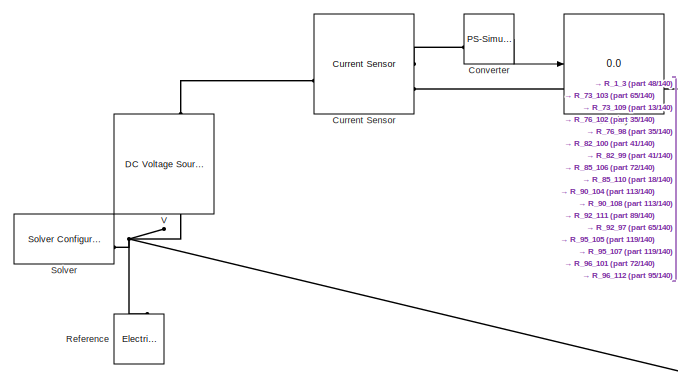
[diagram: root canvas - part 1/140, top left region]
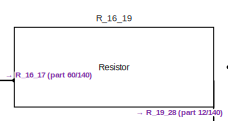
[diagram: root canvas - part 2/140, top right region]
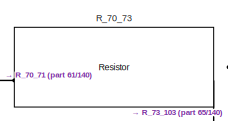
[diagram: root canvas - part 3/140, top right region]
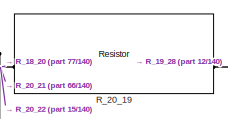
[diagram: root canvas - part 4/140, top right region]
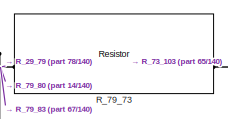
[diagram: root canvas - part 5/140, top right region]
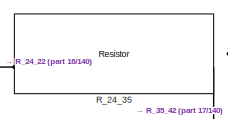
[diagram: root canvas - part 6/140, top right region]
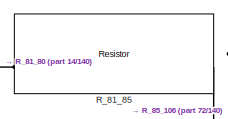
[diagram: root canvas - part 7/140, top right region]
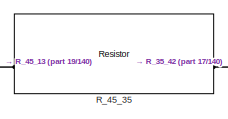
[diagram: root canvas - part 8/140, top right region]
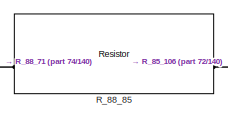
[diagram: root canvas - part 9/140, top right region]
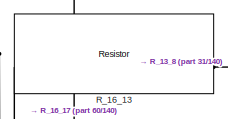
[diagram: root canvas - part 10/140, top center region]
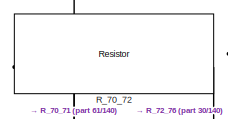
[diagram: root canvas - part 11/140, top right region]
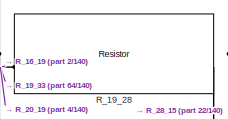
[diagram: root canvas - part 12/140, top right region]
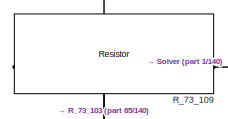
[diagram: root canvas - part 13/140, top right region]
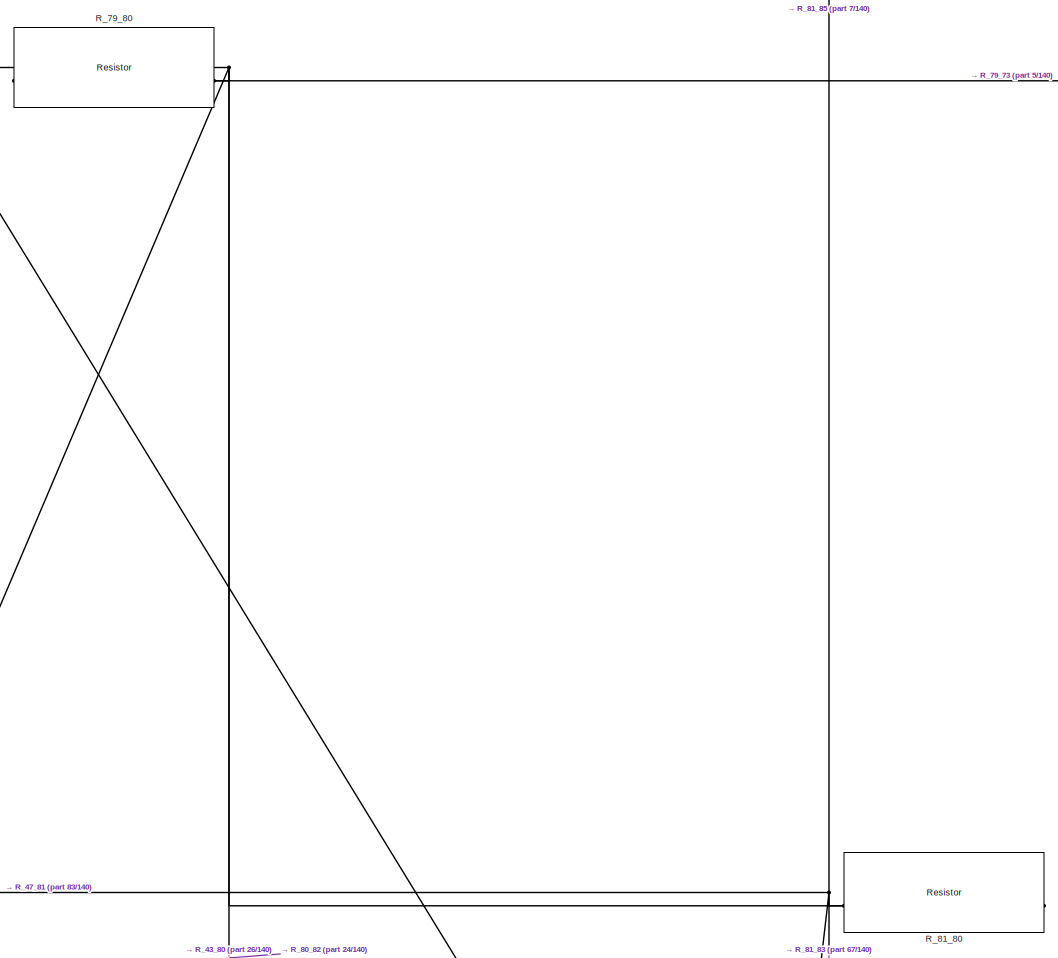
[diagram: root canvas - part 14/140, top right region]
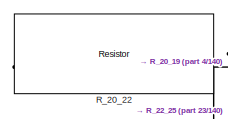
[diagram: root canvas - part 15/140, top center region]
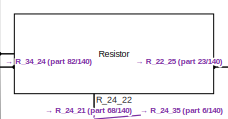
[diagram: root canvas - part 16/140, top center region]
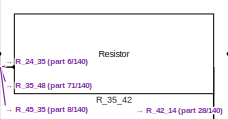
[diagram: root canvas - part 17/140, top right region]
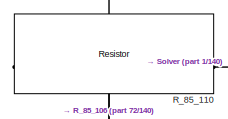
[diagram: root canvas - part 18/140, top right region]
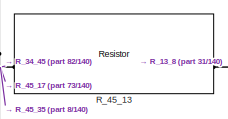
[diagram: root canvas - part 19/140, top center region]
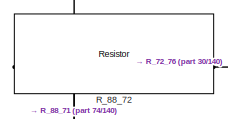
[diagram: root canvas - part 20/140, top right region]
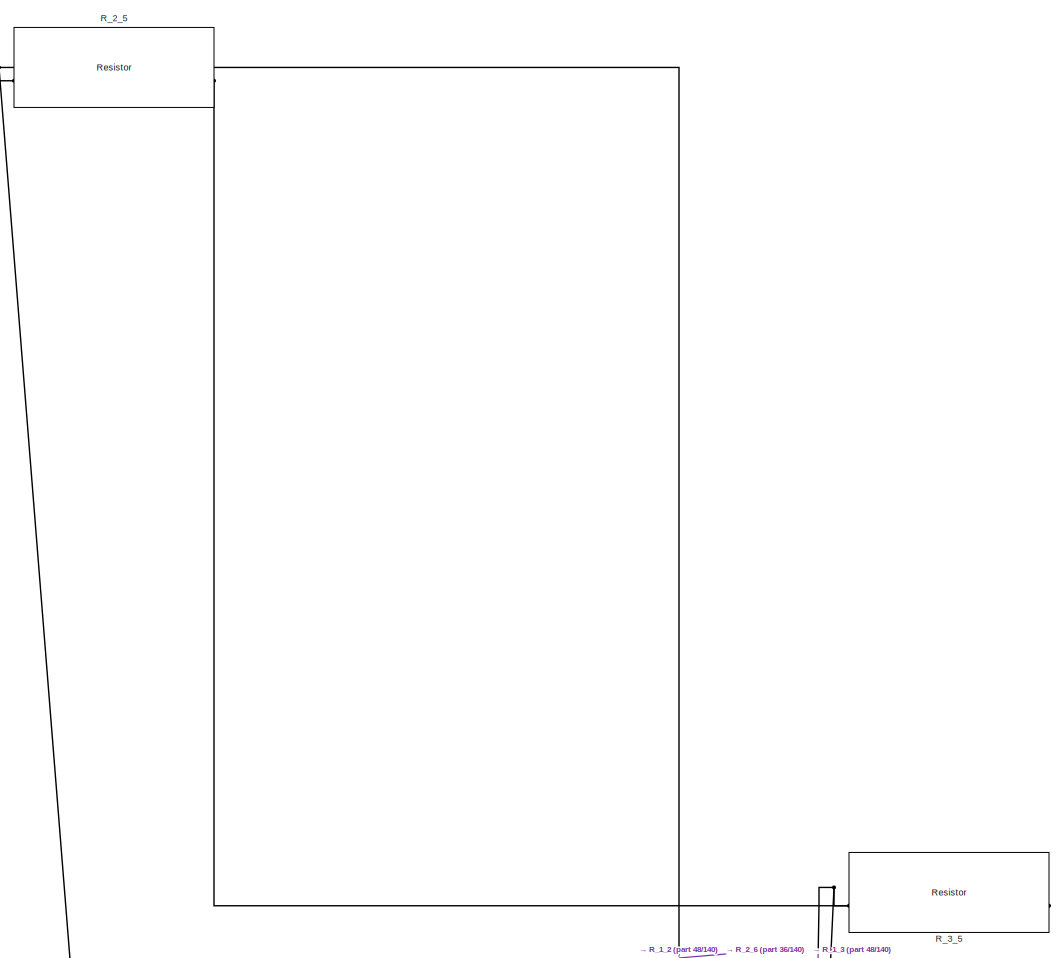
[diagram: root canvas - part 21/140, top center region]
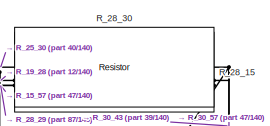
[diagram: root canvas - part 22/140, top right region]
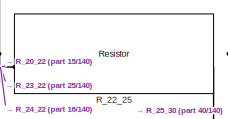
[diagram: root canvas - part 23/140, top right region]
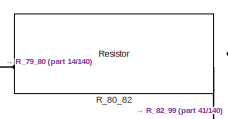
[diagram: root canvas - part 24/140, top right region]
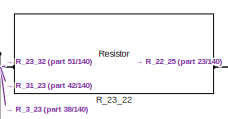
[diagram: root canvas - part 25/140, top center region]
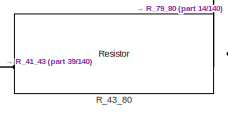
[diagram: root canvas - part 26/140, top right region]
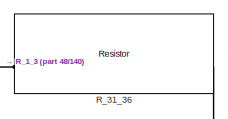
[diagram: root canvas - part 27/140, top center region]
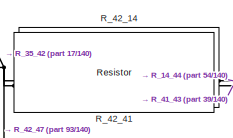
[diagram: root canvas - part 28/140, top right region]
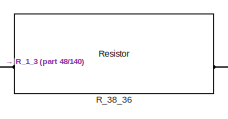
[diagram: root canvas - part 29/140, top center region]
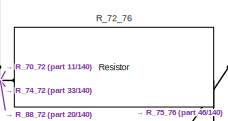
[diagram: root canvas - part 30/140, top right region]
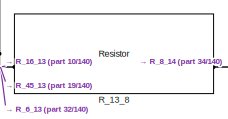
[diagram: root canvas - part 31/140, top right region]
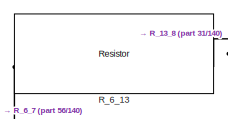
[diagram: root canvas - part 32/140, top center region]
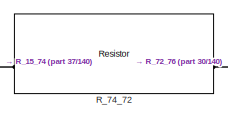
[diagram: root canvas - part 33/140, top right region]
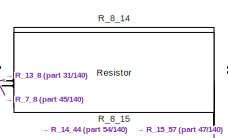
[diagram: root canvas - part 34/140, top right region]
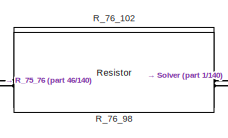
[diagram: root canvas - part 35/140, top right region]
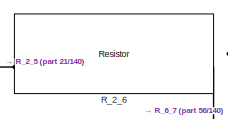
[diagram: root canvas - part 36/140, top center region]
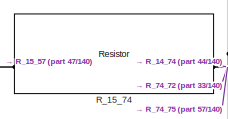
[diagram: root canvas - part 37/140, top right region]
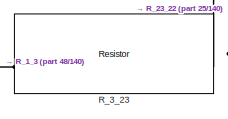
[diagram: root canvas - part 38/140, top center region]
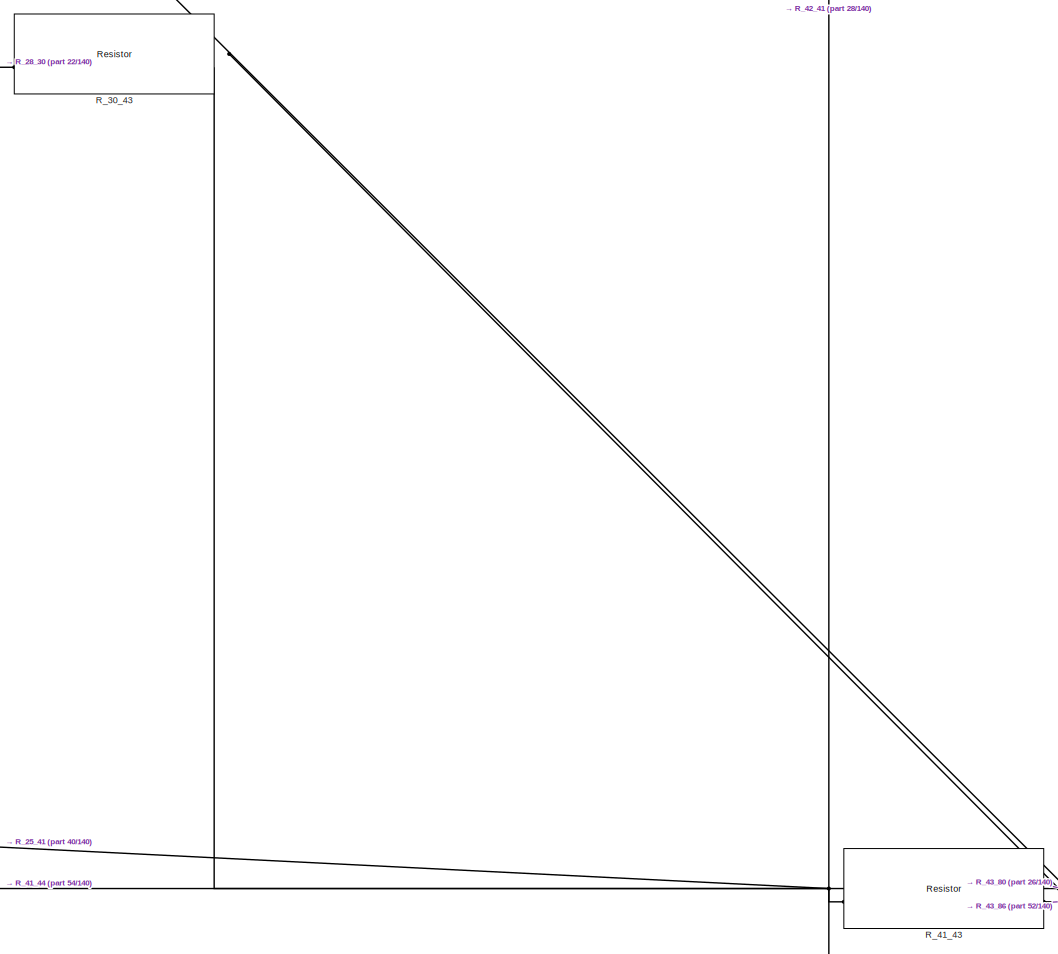
[diagram: root canvas - part 39/140, top right region]
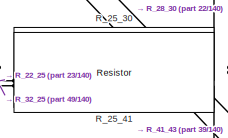
[diagram: root canvas - part 40/140, top right region]
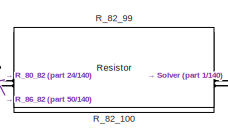
[diagram: root canvas - part 41/140, top right region]
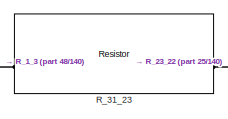
[diagram: root canvas - part 42/140, top center region]
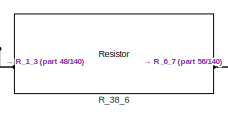
[diagram: root canvas - part 43/140, top center region]
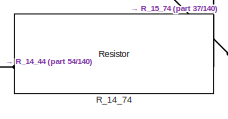
[diagram: root canvas - part 44/140, top right region]
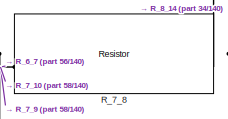
[diagram: root canvas - part 45/140, top center region]
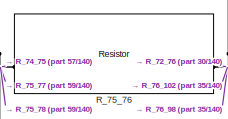
[diagram: root canvas - part 46/140, top right region]
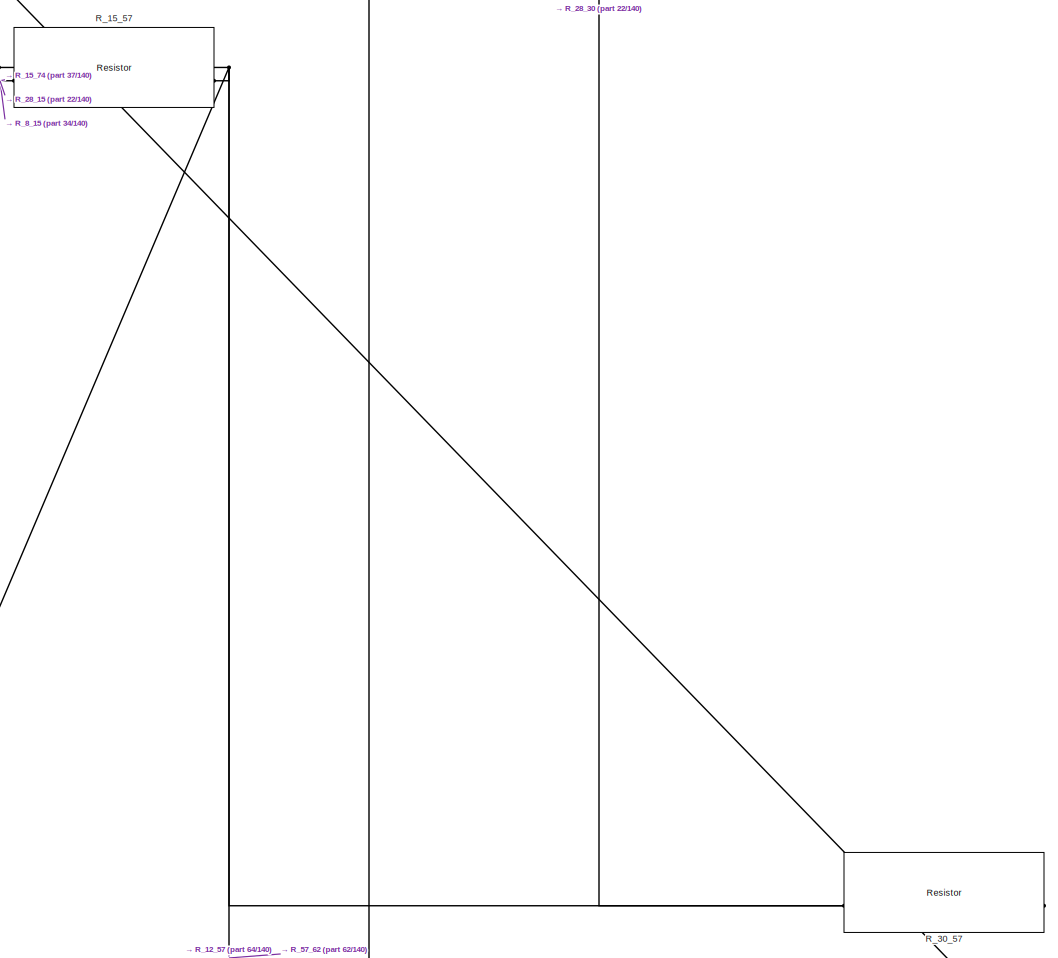
[diagram: root canvas - part 47/140, middle right region]
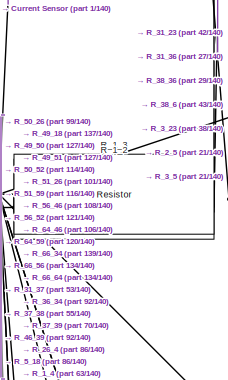
[diagram: root canvas - part 48/140, central region]
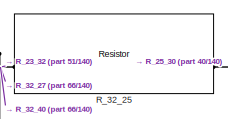
[diagram: root canvas - part 49/140, middle right region]
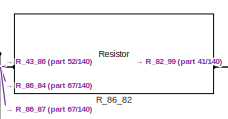
[diagram: root canvas - part 50/140, middle right region]
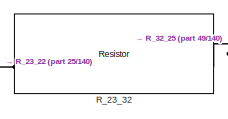
[diagram: root canvas - part 51/140, central region]
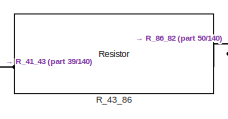
[diagram: root canvas - part 52/140, middle right region]
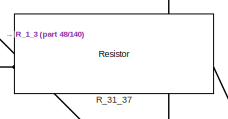
[diagram: root canvas - part 53/140, central region]
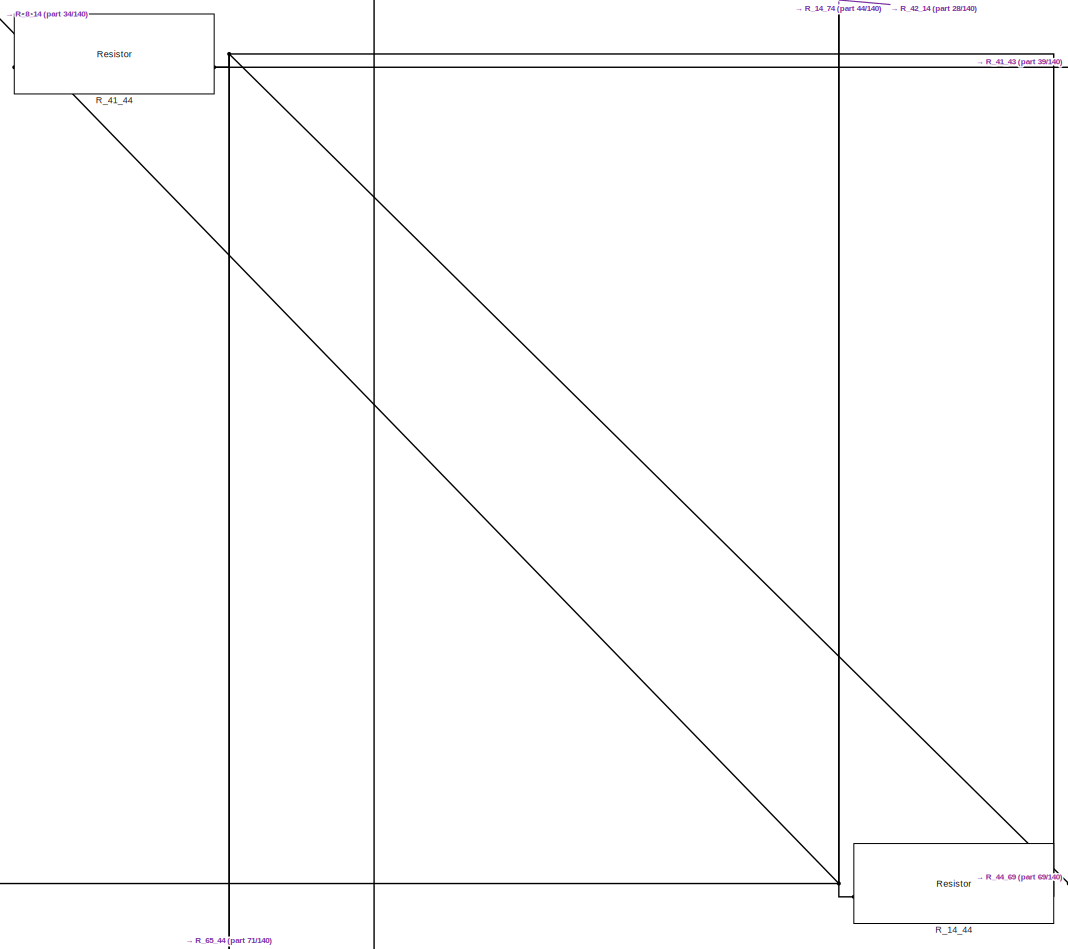
[diagram: root canvas - part 54/140, middle right region]
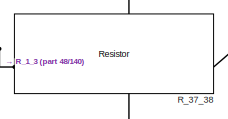
[diagram: root canvas - part 55/140, central region]
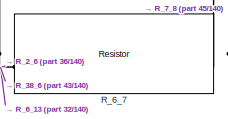
[diagram: root canvas - part 56/140, central region]
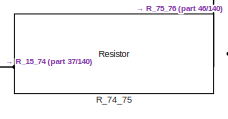
[diagram: root canvas - part 57/140, middle right region]
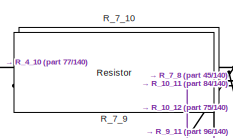
[diagram: root canvas - part 58/140, central region]
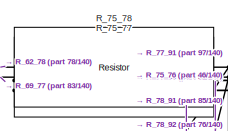
[diagram: root canvas - part 59/140, middle right region]
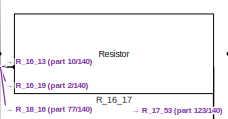
[diagram: root canvas - part 60/140, central region]
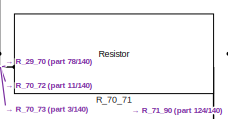
[diagram: root canvas - part 61/140, middle right region]
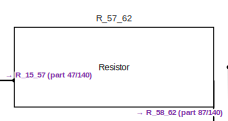
[diagram: root canvas - part 62/140, middle right region]
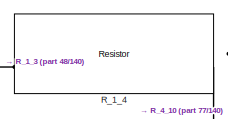
[diagram: root canvas - part 63/140, central region]
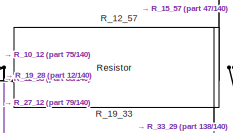
[diagram: root canvas - part 64/140, middle right region]
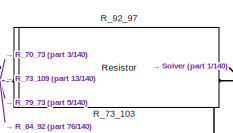
[diagram: root canvas - part 65/140, middle right region]
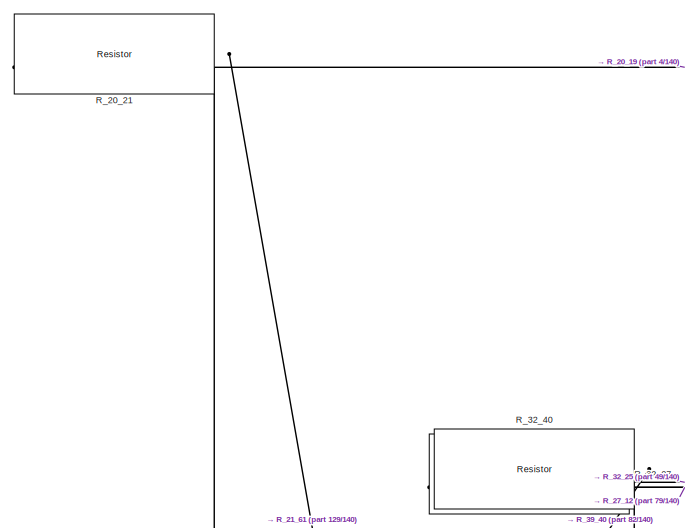
[diagram: root canvas - part 66/140, central region]
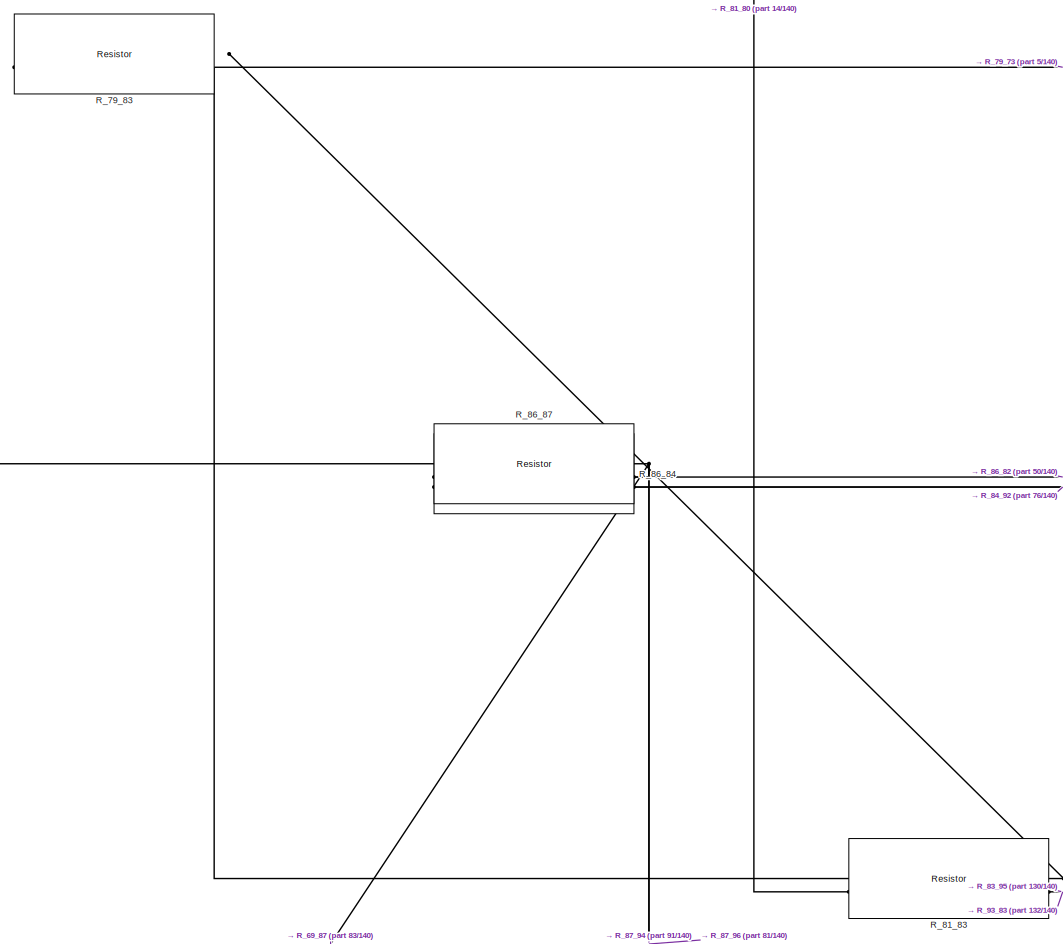
[diagram: root canvas - part 67/140, middle right region]
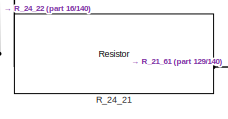
[diagram: root canvas - part 68/140, central region]
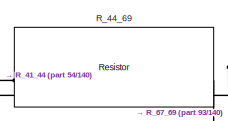
[diagram: root canvas - part 69/140, middle right region]
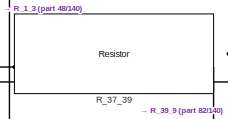
[diagram: root canvas - part 70/140, central region]
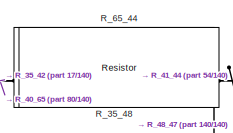
[diagram: root canvas - part 71/140, middle right region]
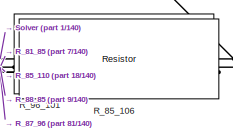
[diagram: root canvas - part 72/140, middle right region]
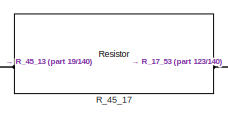
[diagram: root canvas - part 73/140, central region]
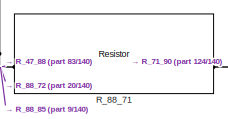
[diagram: root canvas - part 74/140, middle right region]
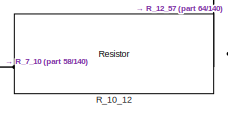
[diagram: root canvas - part 75/140, middle right region]
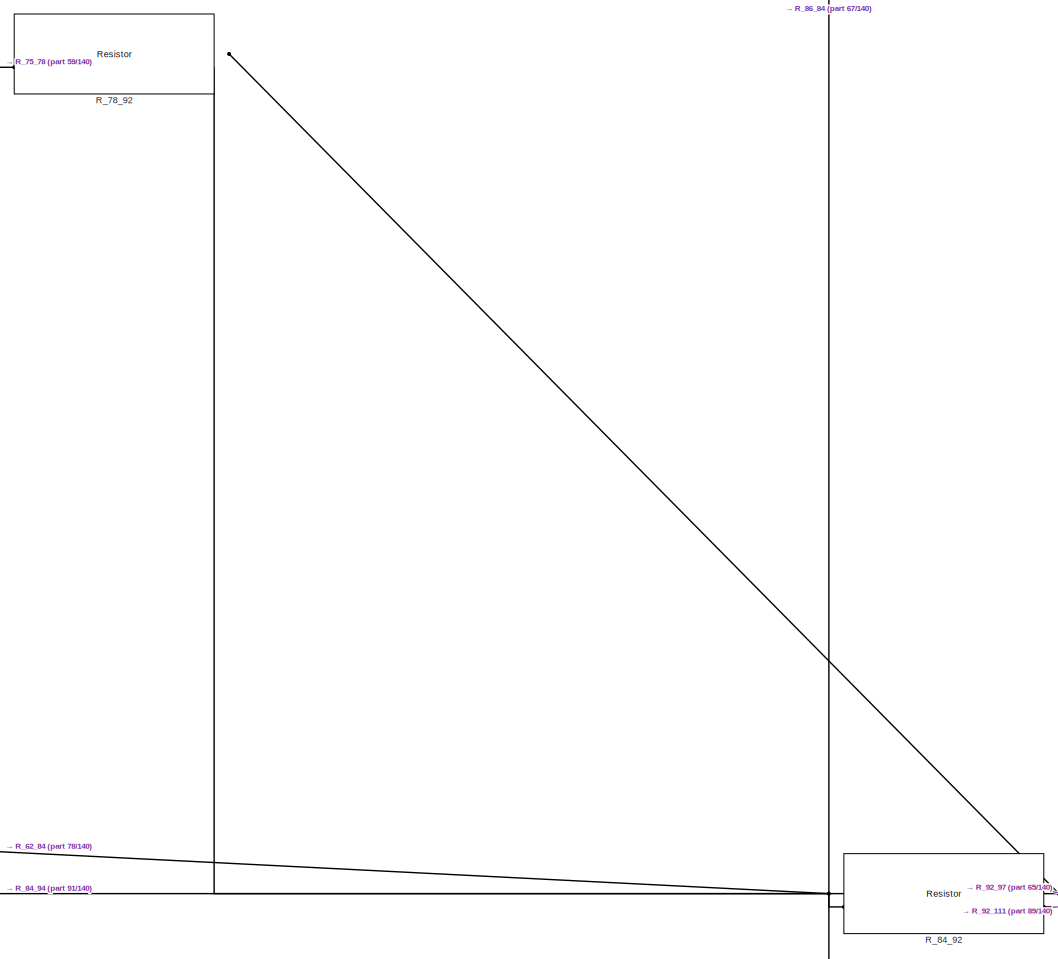
[diagram: root canvas - part 76/140, middle right region]
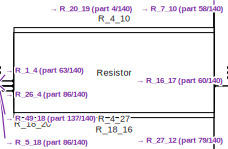
[diagram: root canvas - part 77/140, central region]
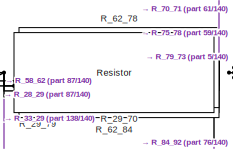
[diagram: root canvas - part 78/140, middle right region]
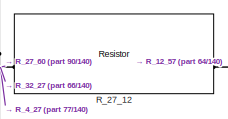
[diagram: root canvas - part 79/140, middle right region]
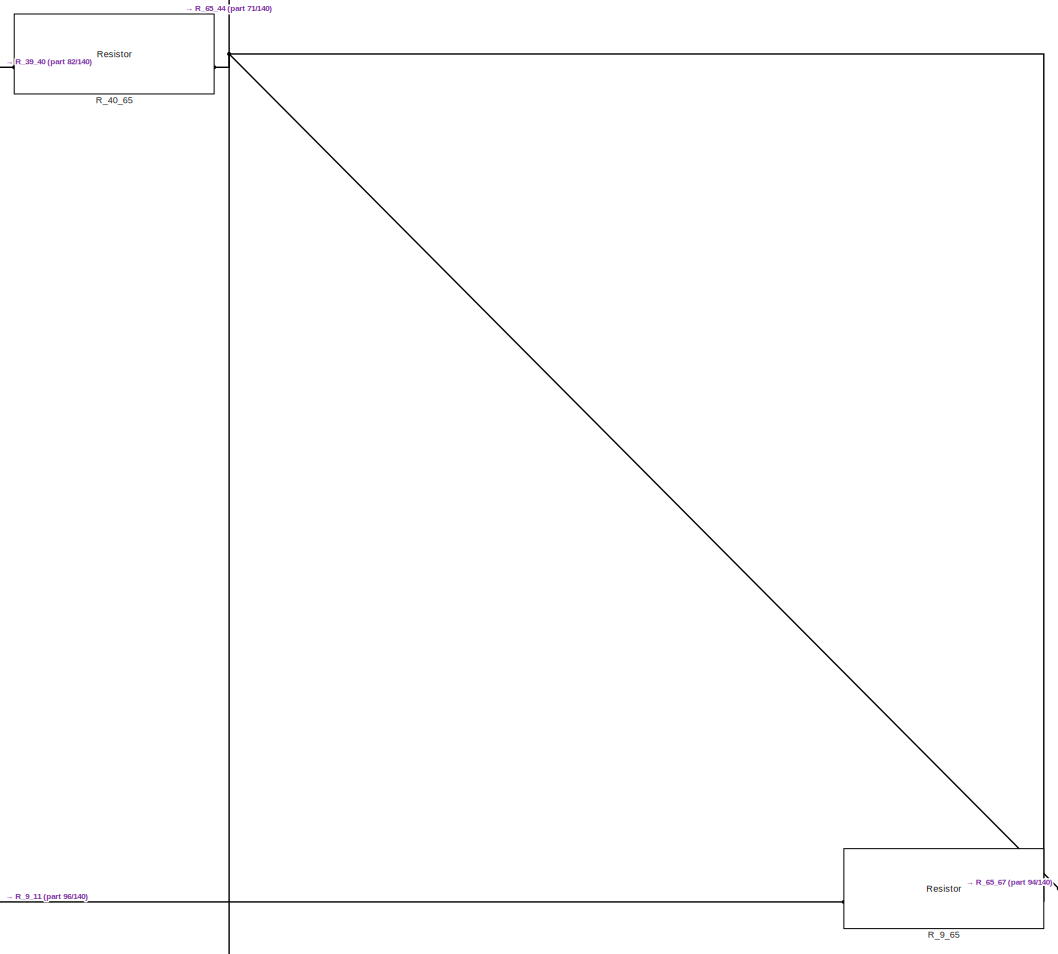
[diagram: root canvas - part 80/140, middle right region]
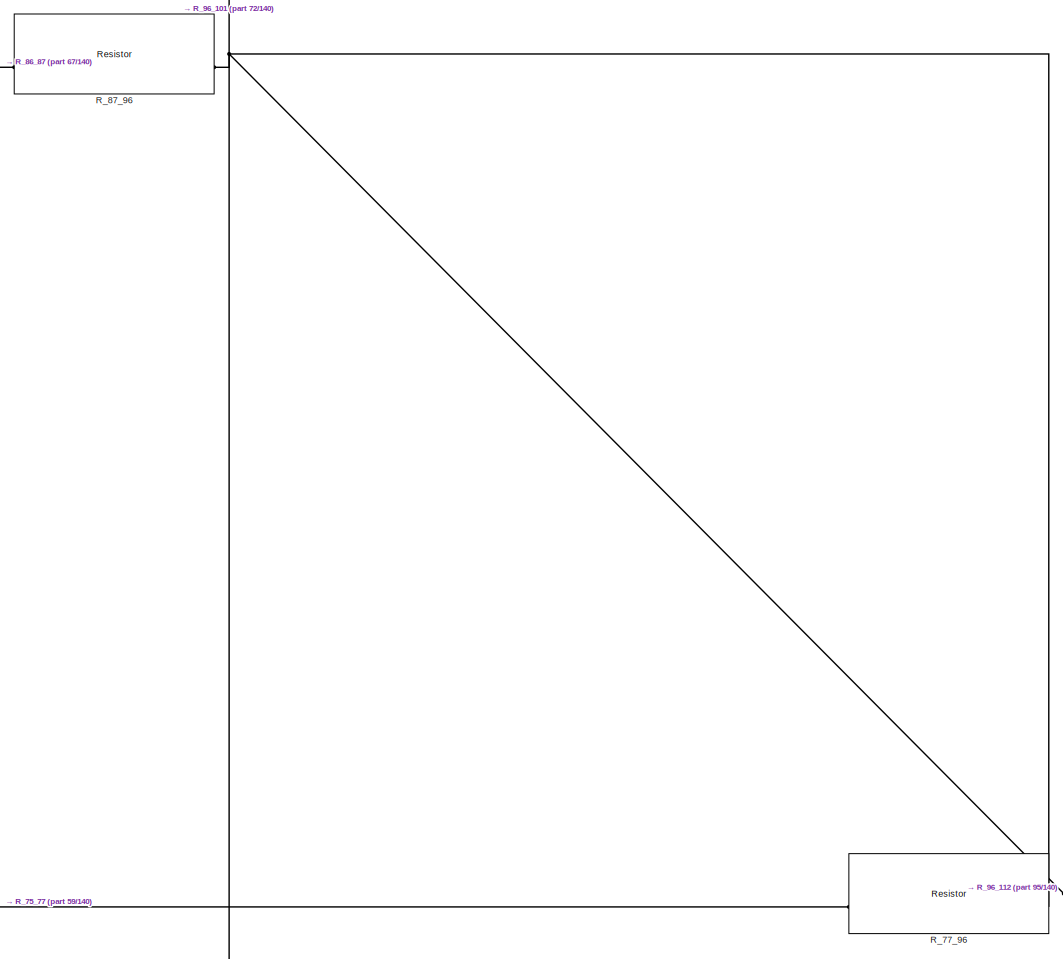
[diagram: root canvas - part 81/140, middle right region]
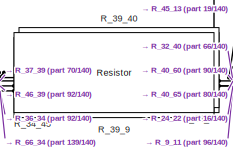
[diagram: root canvas - part 82/140, central region]
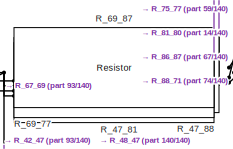
[diagram: root canvas - part 83/140, middle right region]
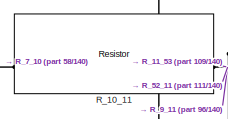
[diagram: root canvas - part 84/140, central region]
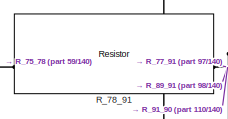
[diagram: root canvas - part 85/140, middle right region]
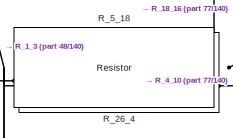
[diagram: root canvas - part 86/140, central region]
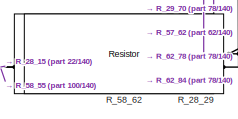
[diagram: root canvas - part 87/140, middle right region]
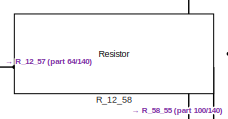
[diagram: root canvas - part 88/140, middle right region]
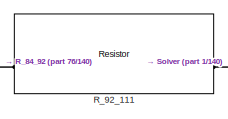
[diagram: root canvas - part 89/140, middle right region]
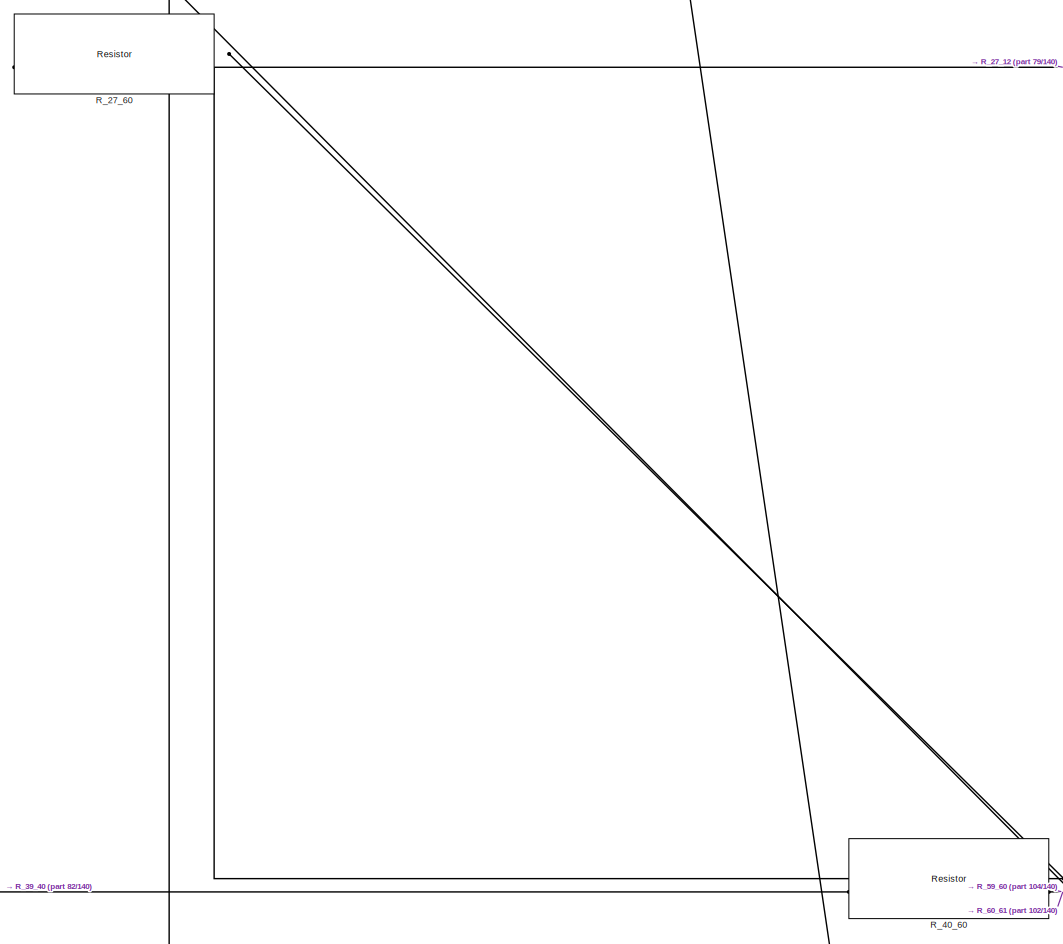
[diagram: root canvas - part 90/140, central region]
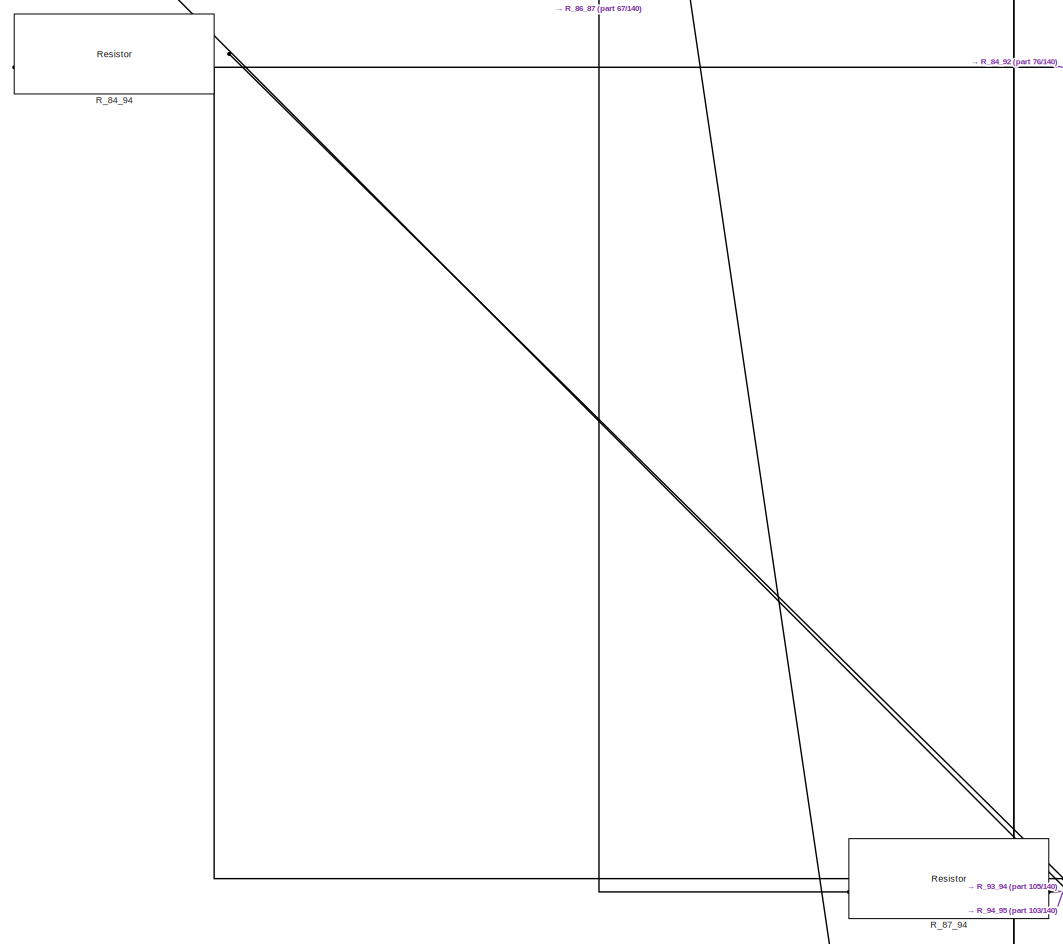
[diagram: root canvas - part 91/140, middle right region]
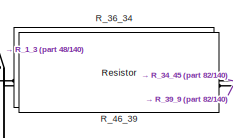
[diagram: root canvas - part 92/140, central region]
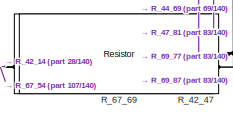
[diagram: root canvas - part 93/140, middle right region]
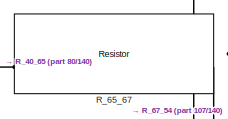
[diagram: root canvas - part 94/140, middle right region]
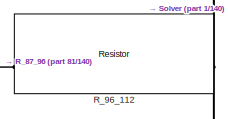
[diagram: root canvas - part 95/140, middle right region]
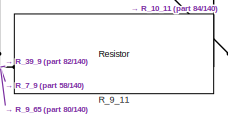
[diagram: root canvas - part 96/140, central region]
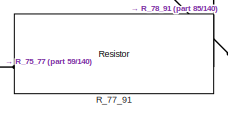
[diagram: root canvas - part 97/140, middle right region]
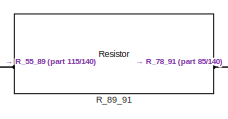
[diagram: root canvas - part 98/140, bottom right region]
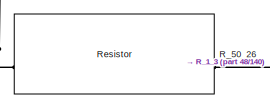
[diagram: root canvas - part 99/140, bottom center region]
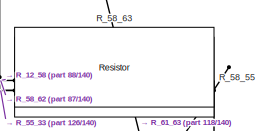
[diagram: root canvas - part 100/140, bottom right region]
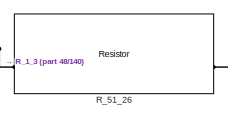
[diagram: root canvas - part 101/140, bottom center region]
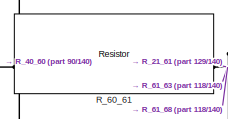
[diagram: root canvas - part 102/140, bottom right region]
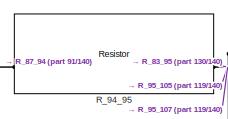
[diagram: root canvas - part 103/140, bottom right region]
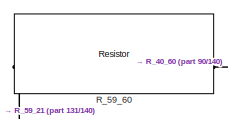
[diagram: root canvas - part 104/140, bottom center region]
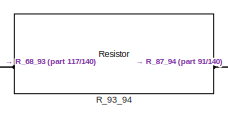
[diagram: root canvas - part 105/140, bottom right region]
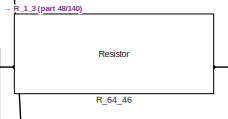
[diagram: root canvas - part 106/140, bottom center region]
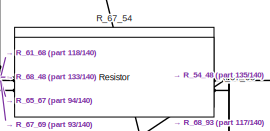
[diagram: root canvas - part 107/140, bottom right region]
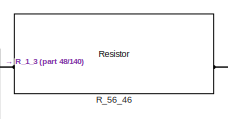
[diagram: root canvas - part 108/140, bottom center region]
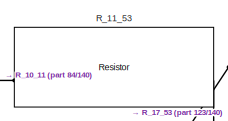
[diagram: root canvas - part 109/140, bottom right region]
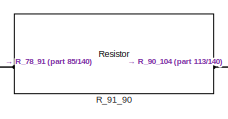
[diagram: root canvas - part 110/140, bottom right region]
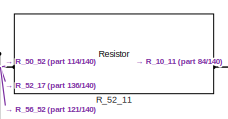
[diagram: root canvas - part 111/140, bottom center region]
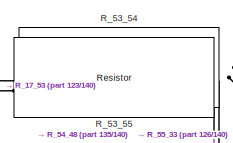
[diagram: root canvas - part 112/140, bottom right region]
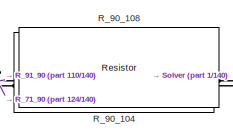
[diagram: root canvas - part 113/140, bottom right region]
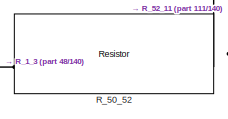
[diagram: root canvas - part 114/140, bottom center region]
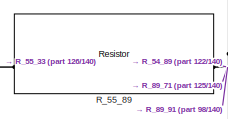
[diagram: root canvas - part 115/140, bottom right region]
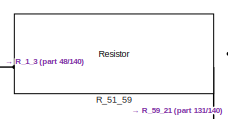
[diagram: root canvas - part 116/140, bottom center region]
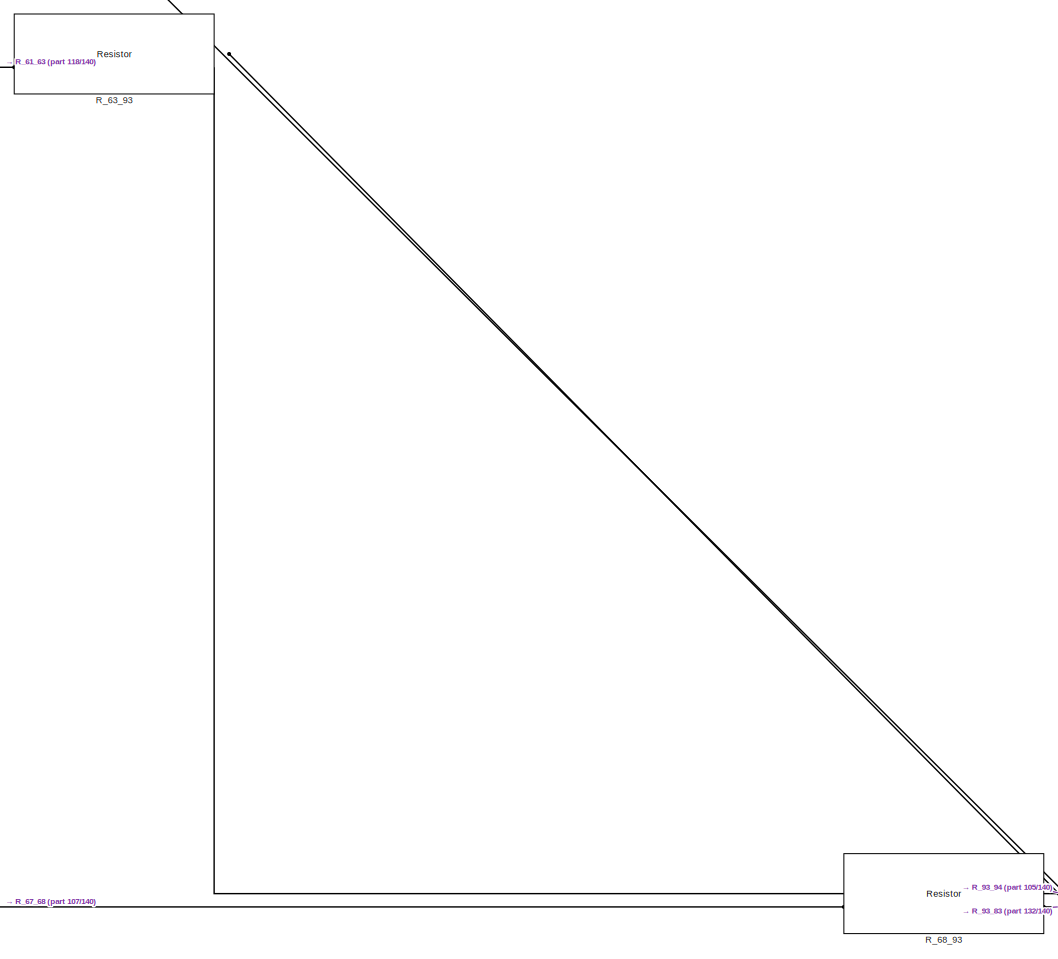
[diagram: root canvas - part 117/140, bottom right region]
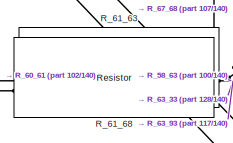
[diagram: root canvas - part 118/140, bottom right region]
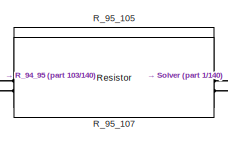
[diagram: root canvas - part 119/140, bottom right region]
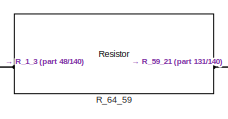
[diagram: root canvas - part 120/140, bottom center region]
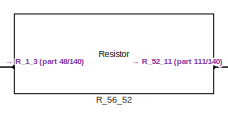
[diagram: root canvas - part 121/140, bottom center region]
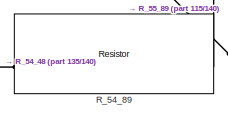
[diagram: root canvas - part 122/140, bottom right region]
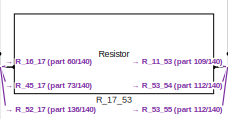
[diagram: root canvas - part 123/140, bottom center region]
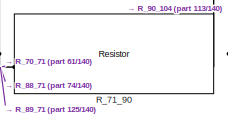
[diagram: root canvas - part 124/140, bottom right region]
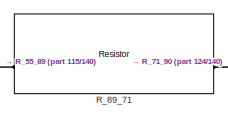
[diagram: root canvas - part 125/140, bottom right region]
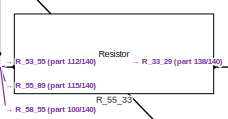
[diagram: root canvas - part 126/140, bottom right region]
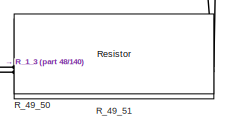
[diagram: root canvas - part 127/140, bottom center region]
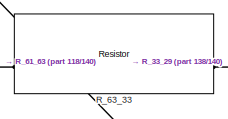
[diagram: root canvas - part 128/140, bottom right region]
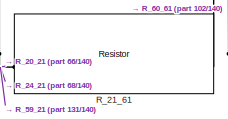
[diagram: root canvas - part 129/140, bottom right region]
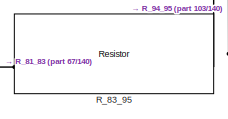
[diagram: root canvas - part 130/140, bottom right region]
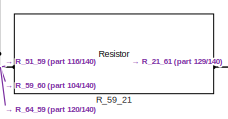
[diagram: root canvas - part 131/140, bottom center region]
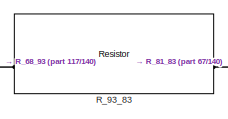
[diagram: root canvas - part 132/140, bottom right region]
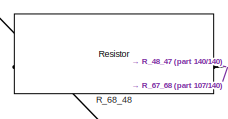
[diagram: root canvas - part 133/140, bottom right region]
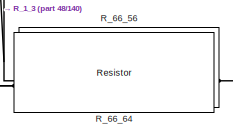
[diagram: root canvas - part 134/140, bottom center region]
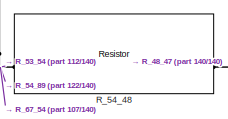
[diagram: root canvas - part 135/140, bottom right region]
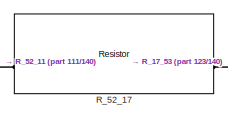
[diagram: root canvas - part 136/140, bottom center region]
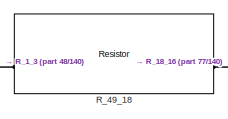
[diagram: root canvas - part 137/140, bottom center region]
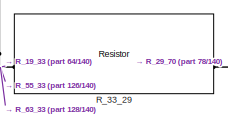
[diagram: root canvas - part 138/140, bottom right region]
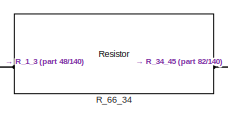
[diagram: root canvas - part 139/140, bottom center region]
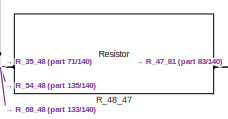
[diagram: root canvas - part 140/140, bottom right region]
MODEL slx_bacc2adb310d
KIND model
CONFIG AbsTol = auto
CONFIG EnableMultiTasking = off
CONFIG FixedStep = auto
CONFIG MaxStep = auto
CONFIG MinStep = auto
CONFIG RelTol = 1e-3
CONFIG SampleTimeConstraint = Unconstrained
CONFIG SolverName = VariableStepAuto
CONFIG StartTime = 0.0
CONFIG StopTime = 10.0
BLOCK [Reference] Converter  REF=nesl_utility/PS-Simulink
Converter
  SourceBlock = nesl_utility/PS-Simulink\nConverter
  SourceType = PS-Simulink\nConverter
BLOCK [Reference] Current Sensor  REF=fl_lib/Electrical/Electrical Sensors/Current Sensor
  SourceBlock = fl_lib/Electrical/Electrical Sensors/Current Sensor
  SourceType = Current Sensor
BLOCK [Display] Display
  Decimation = 1
BLOCK [Reference] R_10_11  REF=fl_lib/Electrical/Electrical Elements/Resistor
  SourceBlock = fl_lib/Electrical/Electrical Elements/Resistor
  SourceType = Resistor
BLOCK [Reference] R_10_12  REF=fl_lib/Electrical/Electrical Elements/Resistor
  SourceBlock = fl_lib/Electrical/Electrical Elements/Resistor
  SourceType = Resistor
BLOCK [Reference] R_11_53  REF=fl_lib/Electrical/Electrical Elements/Resistor
  SourceBlock = fl_lib/Electrical/Electrical Elements/Resistor
  SourceType = Resistor
BLOCK [Reference] R_12_57  REF=fl_lib/Electrical/Electrical Elements/Resistor
  SourceBlock = fl_lib/Electrical/Electrical Elements/Resistor
  SourceType = Resistor
BLOCK [Reference] R_12_58  REF=fl_lib/Electrical/Electrical Elements/Resistor
  SourceBlock = fl_lib/Electrical/Electrical Elements/Resistor
  SourceType = Resistor
BLOCK [Reference] R_13_8  REF=fl_lib/Electrical/Electrical Elements/Resistor
  SourceBlock = fl_lib/Electrical/Electrical Elements/Resistor
  SourceType = Resistor
BLOCK [Reference] R_14_44  REF=fl_lib/Electrical/Electrical Elements/Resistor
  SourceBlock = fl_lib/Electrical/Electrical Elements/Resistor
  SourceType = Resistor
BLOCK [Reference] R_14_74  REF=fl_lib/Electrical/Electrical Elements/Resistor
  SourceBlock = fl_lib/Electrical/Electrical Elements/Resistor
  SourceType = Resistor
BLOCK [Reference] R_15_57  REF=fl_lib/Electrical/Electrical Elements/Resistor
  SourceBlock = fl_lib/Electrical/Electrical Elements/Resistor
  SourceType = Resistor
BLOCK [Reference] R_15_74  REF=fl_lib/Electrical/Electrical Elements/Resistor
  SourceBlock = fl_lib/Electrical/Electrical Elements/Resistor
  SourceType = Resistor
BLOCK [Reference] R_16_13  REF=fl_lib/Electrical/Electrical Elements/Resistor
  SourceBlock = fl_lib/Electrical/Electrical Elements/Resistor
  SourceType = Resistor
BLOCK [Reference] R_16_17  REF=fl_lib/Electrical/Electrical Elements/Resistor
  SourceBlock = fl_lib/Electrical/Electrical Elements/Resistor
  SourceType = Resistor
BLOCK [Reference] R_16_19  REF=fl_lib/Electrical/Electrical Elements/Resistor
  SourceBlock = fl_lib/Electrical/Electrical Elements/Resistor
  SourceType = Resistor
BLOCK [Reference] R_17_53  REF=fl_lib/Electrical/Electrical Elements/Resistor
  SourceBlock = fl_lib/Electrical/Electrical Elements/Resistor
  SourceType = Resistor
BLOCK [Reference] R_18_16  REF=fl_lib/Electrical/Electrical Elements/Resistor
  SourceBlock = fl_lib/Electrical/Electrical Elements/Resistor
  SourceType = Resistor
BLOCK [Reference] R_18_20  REF=fl_lib/Electrical/Electrical Elements/Resistor
  SourceBlock = fl_lib/Electrical/Electrical Elements/Resistor
  SourceType = Resistor
BLOCK [Reference] R_19_28  REF=fl_lib/Electrical/Electrical Elements/Resistor
  SourceBlock = fl_lib/Electrical/Electrical Elements/Resistor
  SourceType = Resistor
BLOCK [Reference] R_19_33  REF=fl_lib/Electrical/Electrical Elements/Resistor
  SourceBlock = fl_lib/Electrical/Electrical Elements/Resistor
  SourceType = Resistor
BLOCK [Reference] R_1_2  REF=fl_lib/Electrical/Electrical Elements/Resistor
  SourceBlock = fl_lib/Electrical/Electrical Elements/Resistor
  SourceType = Resistor
BLOCK [Reference] R_1_3  REF=fl_lib/Electrical/Electrical Elements/Resistor
  SourceBlock = fl_lib/Electrical/Electrical Elements/Resistor
  SourceType = Resistor
BLOCK [Reference] R_1_4  REF=fl_lib/Electrical/Electrical Elements/Resistor
  SourceBlock = fl_lib/Electrical/Electrical Elements/Resistor
  SourceType = Resistor
BLOCK [Reference] R_20_19  REF=fl_lib/Electrical/Electrical Elements/Resistor
  SourceBlock = fl_lib/Electrical/Electrical Elements/Resistor
  SourceType = Resistor
BLOCK [Reference] R_20_21  REF=fl_lib/Electrical/Electrical Elements/Resistor
  SourceBlock = fl_lib/Electrical/Electrical Elements/Resistor
  SourceType = Resistor
BLOCK [Reference] R_20_22  REF=fl_lib/Electrical/Electrical Elements/Resistor
  SourceBlock = fl_lib/Electrical/Electrical Elements/Resistor
  SourceType = Resistor
BLOCK [Reference] R_21_61  REF=fl_lib/Electrical/Electrical Elements/Resistor
  SourceBlock = fl_lib/Electrical/Electrical Elements/Resistor
  SourceType = Resistor
BLOCK [Reference] R_22_25  REF=fl_lib/Electrical/Electrical Elements/Resistor
  SourceBlock = fl_lib/Electrical/Electrical Elements/Resistor
  SourceType = Resistor
BLOCK [Reference] R_23_22  REF=fl_lib/Electrical/Electrical Elements/Resistor
  SourceBlock = fl_lib/Electrical/Electrical Elements/Resistor
  SourceType = Resistor
BLOCK [Reference] R_23_32  REF=fl_lib/Electrical/Electrical Elements/Resistor
  SourceBlock = fl_lib/Electrical/Electrical Elements/Resistor
  SourceType = Resistor
BLOCK [Reference] R_24_21  REF=fl_lib/Electrical/Electrical Elements/Resistor
  SourceBlock = fl_lib/Electrical/Electrical Elements/Resistor
  SourceType = Resistor
BLOCK [Reference] R_24_22  REF=fl_lib/Electrical/Electrical Elements/Resistor
  SourceBlock = fl_lib/Electrical/Electrical Elements/Resistor
  SourceType = Resistor
BLOCK [Reference] R_24_35  REF=fl_lib/Electrical/Electrical Elements/Resistor
  SourceBlock = fl_lib/Electrical/Electrical Elements/Resistor
  SourceType = Resistor
BLOCK [Reference] R_25_30  REF=fl_lib/Electrical/Electrical Elements/Resistor
  SourceBlock = fl_lib/Electrical/Electrical Elements/Resistor
  SourceType = Resistor
BLOCK [Reference] R_25_41  REF=fl_lib/Electrical/Electrical Elements/Resistor
  SourceBlock = fl_lib/Electrical/Electrical Elements/Resistor
  SourceType = Resistor
BLOCK [Reference] R_26_4  REF=fl_lib/Electrical/Electrical Elements/Resistor
  SourceBlock = fl_lib/Electrical/Electrical Elements/Resistor
  SourceType = Resistor
BLOCK [Reference] R_27_12  REF=fl_lib/Electrical/Electrical Elements/Resistor
  SourceBlock = fl_lib/Electrical/Electrical Elements/Resistor
  SourceType = Resistor
BLOCK [Reference] R_27_60  REF=fl_lib/Electrical/Electrical Elements/Resistor
  SourceBlock = fl_lib/Electrical/Electrical Elements/Resistor
  SourceType = Resistor
BLOCK [Reference] R_28_15  REF=fl_lib/Electrical/Electrical Elements/Resistor
  SourceBlock = fl_lib/Electrical/Electrical Elements/Resistor
  SourceType = Resistor
BLOCK [Reference] R_28_29  REF=fl_lib/Electrical/Electrical Elements/Resistor
  SourceBlock = fl_lib/Electrical/Electrical Elements/Resistor
  SourceType = Resistor
BLOCK [Reference] R_28_30  REF=fl_lib/Electrical/Electrical Elements/Resistor
  SourceBlock = fl_lib/Electrical/Electrical Elements/Resistor
  SourceType = Resistor
BLOCK [Reference] R_29_70  REF=fl_lib/Electrical/Electrical Elements/Resistor
  SourceBlock = fl_lib/Electrical/Electrical Elements/Resistor
  SourceType = Resistor
BLOCK [Reference] R_29_79  REF=fl_lib/Electrical/Electrical Elements/Resistor
  SourceBlock = fl_lib/Electrical/Electrical Elements/Resistor
  SourceType = Resistor
BLOCK [Reference] R_2_5  REF=fl_lib/Electrical/Electrical Elements/Resistor
  SourceBlock = fl_lib/Electrical/Electrical Elements/Resistor
  SourceType = Resistor
BLOCK [Reference] R_2_6  REF=fl_lib/Electrical/Electrical Elements/Resistor
  SourceBlock = fl_lib/Electrical/Electrical Elements/Resistor
  SourceType = Resistor
BLOCK [Reference] R_30_43  REF=fl_lib/Electrical/Electrical Elements/Resistor
  SourceBlock = fl_lib/Electrical/Electrical Elements/Resistor
  SourceType = Resistor
BLOCK [Reference] R_30_57  REF=fl_lib/Electrical/Electrical Elements/Resistor
  SourceBlock = fl_lib/Electrical/Electrical Elements/Resistor
  SourceType = Resistor
BLOCK [Reference] R_31_23  REF=fl_lib/Electrical/Electrical Elements/Resistor
  SourceBlock = fl_lib/Electrical/Electrical Elements/Resistor
  SourceType = Resistor
BLOCK [Reference] R_31_36  REF=fl_lib/Electrical/Electrical Elements/Resistor
  SourceBlock = fl_lib/Electrical/Electrical Elements/Resistor
  SourceType = Resistor
BLOCK [Reference] R_31_37  REF=fl_lib/Electrical/Electrical Elements/Resistor
  SourceBlock = fl_lib/Electrical/Electrical Elements/Resistor
  SourceType = Resistor
BLOCK [Reference] R_32_25  REF=fl_lib/Electrical/Electrical Elements/Resistor
  SourceBlock = fl_lib/Electrical/Electrical Elements/Resistor
  SourceType = Resistor
BLOCK [Reference] R_32_27  REF=fl_lib/Electrical/Electrical Elements/Resistor
  SourceBlock = fl_lib/Electrical/Electrical Elements/Resistor
  SourceType = Resistor
BLOCK [Reference] R_32_40  REF=fl_lib/Electrical/Electrical Elements/Resistor
  SourceBlock = fl_lib/Electrical/Electrical Elements/Resistor
  SourceType = Resistor
BLOCK [Reference] R_33_29  REF=fl_lib/Electrical/Electrical Elements/Resistor
  SourceBlock = fl_lib/Electrical/Electrical Elements/Resistor
  SourceType = Resistor
BLOCK [Reference] R_34_24  REF=fl_lib/Electrical/Electrical Elements/Resistor
  SourceBlock = fl_lib/Electrical/Electrical Elements/Resistor
  SourceType = Resistor
BLOCK [Reference] R_34_45  REF=fl_lib/Electrical/Electrical Elements/Resistor
  SourceBlock = fl_lib/Electrical/Electrical Elements/Resistor
  SourceType = Resistor
BLOCK [Reference] R_35_42  REF=fl_lib/Electrical/Electrical Elements/Resistor
  SourceBlock = fl_lib/Electrical/Electrical Elements/Resistor
  SourceType = Resistor
BLOCK [Reference] R_35_48  REF=fl_lib/Electrical/Electrical Elements/Resistor
  SourceBlock = fl_lib/Electrical/Electrical Elements/Resistor
  SourceType = Resistor
BLOCK [Reference] R_36_34  REF=fl_lib/Electrical/Electrical Elements/Resistor
  SourceBlock = fl_lib/Electrical/Electrical Elements/Resistor
  SourceType = Resistor
BLOCK [Reference] R_37_38  REF=fl_lib/Electrical/Electrical Elements/Resistor
  SourceBlock = fl_lib/Electrical/Electrical Elements/Resistor
  SourceType = Resistor
BLOCK [Reference] R_37_39  REF=fl_lib/Electrical/Electrical Elements/Resistor
  SourceBlock = fl_lib/Electrical/Electrical Elements/Resistor
  SourceType = Resistor
BLOCK [Reference] R_38_36  REF=fl_lib/Electrical/Electrical Elements/Resistor
  SourceBlock = fl_lib/Electrical/Electrical Elements/Resistor
  SourceType = Resistor
BLOCK [Reference] R_38_6  REF=fl_lib/Electrical/Electrical Elements/Resistor
  SourceBlock = fl_lib/Electrical/Electrical Elements/Resistor
  SourceType = Resistor
BLOCK [Reference] R_39_40  REF=fl_lib/Electrical/Electrical Elements/Resistor
  SourceBlock = fl_lib/Electrical/Electrical Elements/Resistor
  SourceType = Resistor
BLOCK [Reference] R_39_9  REF=fl_lib/Electrical/Electrical Elements/Resistor
  SourceBlock = fl_lib/Electrical/Electrical Elements/Resistor
  SourceType = Resistor
BLOCK [Reference] R_3_23  REF=fl_lib/Electrical/Electrical Elements/Resistor
  SourceBlock = fl_lib/Electrical/Electrical Elements/Resistor
  SourceType = Resistor
BLOCK [Reference] R_3_5  REF=fl_lib/Electrical/Electrical Elements/Resistor
  SourceBlock = fl_lib/Electrical/Electrical Elements/Resistor
  SourceType = Resistor
BLOCK [Reference] R_40_60  REF=fl_lib/Electrical/Electrical Elements/Resistor
  SourceBlock = fl_lib/Electrical/Electrical Elements/Resistor
  SourceType = Resistor
BLOCK [Reference] R_40_65  REF=fl_lib/Electrical/Electrical Elements/Resistor
  SourceBlock = fl_lib/Electrical/Electrical Elements/Resistor
  SourceType = Resistor
BLOCK [Reference] R_41_43  REF=fl_lib/Electrical/Electrical Elements/Resistor
  SourceBlock = fl_lib/Electrical/Electrical Elements/Resistor
  SourceType = Resistor
BLOCK [Reference] R_41_44  REF=fl_lib/Electrical/Electrical Elements/Resistor
  SourceBlock = fl_lib/Electrical/Electrical Elements/Resistor
  SourceType = Resistor
BLOCK [Reference] R_42_14  REF=fl_lib/Electrical/Electrical Elements/Resistor
  SourceBlock = fl_lib/Electrical/Electrical Elements/Resistor
  SourceType = Resistor
BLOCK [Reference] R_42_41  REF=fl_lib/Electrical/Electrical Elements/Resistor
  SourceBlock = fl_lib/Electrical/Electrical Elements/Resistor
  SourceType = Resistor
BLOCK [Reference] R_42_47  REF=fl_lib/Electrical/Electrical Elements/Resistor
  SourceBlock = fl_lib/Electrical/Electrical Elements/Resistor
  SourceType = Resistor
BLOCK [Reference] R_43_80  REF=fl_lib/Electrical/Electrical Elements/Resistor
  SourceBlock = fl_lib/Electrical/Electrical Elements/Resistor
  SourceType = Resistor
BLOCK [Reference] R_43_86  REF=fl_lib/Electrical/Electrical Elements/Resistor
  SourceBlock = fl_lib/Electrical/Electrical Elements/Resistor
  SourceType = Resistor
BLOCK [Reference] R_44_69  REF=fl_lib/Electrical/Electrical Elements/Resistor
  SourceBlock = fl_lib/Electrical/Electrical Elements/Resistor
  SourceType = Resistor
BLOCK [Reference] R_45_13  REF=fl_lib/Electrical/Electrical Elements/Resistor
  SourceBlock = fl_lib/Electrical/Electrical Elements/Resistor
  SourceType = Resistor
BLOCK [Reference] R_45_17  REF=fl_lib/Electrical/Electrical Elements/Resistor
  SourceBlock = fl_lib/Electrical/Electrical Elements/Resistor
  SourceType = Resistor
BLOCK [Reference] R_45_35  REF=fl_lib/Electrical/Electrical Elements/Resistor
  SourceBlock = fl_lib/Electrical/Electrical Elements/Resistor
  SourceType = Resistor
BLOCK [Reference] R_46_39  REF=fl_lib/Electrical/Electrical Elements/Resistor
  SourceBlock = fl_lib/Electrical/Electrical Elements/Resistor
  SourceType = Resistor
BLOCK [Reference] R_47_81  REF=fl_lib/Electrical/Electrical Elements/Resistor
  SourceBlock = fl_lib/Electrical/Electrical Elements/Resistor
  SourceType = Resistor
BLOCK [Reference] R_47_88  REF=fl_lib/Electrical/Electrical Elements/Resistor
  SourceBlock = fl_lib/Electrical/Electrical Elements/Resistor
  SourceType = Resistor
BLOCK [Reference] R_48_47  REF=fl_lib/Electrical/Electrical Elements/Resistor
  SourceBlock = fl_lib/Electrical/Electrical Elements/Resistor
  SourceType = Resistor
BLOCK [Reference] R_49_18  REF=fl_lib/Electrical/Electrical Elements/Resistor
  SourceBlock = fl_lib/Electrical/Electrical Elements/Resistor
  SourceType = Resistor
BLOCK [Reference] R_49_50  REF=fl_lib/Electrical/Electrical Elements/Resistor
  SourceBlock = fl_lib/Electrical/Electrical Elements/Resistor
  SourceType = Resistor
BLOCK [Reference] R_49_51  REF=fl_lib/Electrical/Electrical Elements/Resistor
  SourceBlock = fl_lib/Electrical/Electrical Elements/Resistor
  SourceType = Resistor
BLOCK [Reference] R_4_10  REF=fl_lib/Electrical/Electrical Elements/Resistor
  SourceBlock = fl_lib/Electrical/Electrical Elements/Resistor
  SourceType = Resistor
BLOCK [Reference] R_4_27  REF=fl_lib/Electrical/Electrical Elements/Resistor
  SourceBlock = fl_lib/Electrical/Electrical Elements/Resistor
  SourceType = Resistor
BLOCK [Reference] R_50_26  REF=fl_lib/Electrical/Electrical Elements/Resistor
  SourceBlock = fl_lib/Electrical/Electrical Elements/Resistor
  SourceType = Resistor
BLOCK [Reference] R_50_52  REF=fl_lib/Electrical/Electrical Elements/Resistor
  SourceBlock = fl_lib/Electrical/Electrical Elements/Resistor
  SourceType = Resistor
BLOCK [Reference] R_51_26  REF=fl_lib/Electrical/Electrical Elements/Resistor
  SourceBlock = fl_lib/Electrical/Electrical Elements/Resistor
  SourceType = Resistor
BLOCK [Reference] R_51_59  REF=fl_lib/Electrical/Electrical Elements/Resistor
  SourceBlock = fl_lib/Electrical/Electrical Elements/Resistor
  SourceType = Resistor
BLOCK [Reference] R_52_11  REF=fl_lib/Electrical/Electrical Elements/Resistor
  SourceBlock = fl_lib/Electrical/Electrical Elements/Resistor
  SourceType = Resistor
BLOCK [Reference] R_52_17  REF=fl_lib/Electrical/Electrical Elements/Resistor
  SourceBlock = fl_lib/Electrical/Electrical Elements/Resistor
  SourceType = Resistor
BLOCK [Reference] R_53_54  REF=fl_lib/Electrical/Electrical Elements/Resistor
  SourceBlock = fl_lib/Electrical/Electrical Elements/Resistor
  SourceType = Resistor
BLOCK [Reference] R_53_55  REF=fl_lib/Electrical/Electrical Elements/Resistor
  SourceBlock = fl_lib/Electrical/Electrical Elements/Resistor
  SourceType = Resistor
BLOCK [Reference] R_54_48  REF=fl_lib/Electrical/Electrical Elements/Resistor
  SourceBlock = fl_lib/Electrical/Electrical Elements/Resistor
  SourceType = Resistor
BLOCK [Reference] R_54_89  REF=fl_lib/Electrical/Electrical Elements/Resistor
  SourceBlock = fl_lib/Electrical/Electrical Elements/Resistor
  SourceType = Resistor
BLOCK [Reference] R_55_33  REF=fl_lib/Electrical/Electrical Elements/Resistor
  SourceBlock = fl_lib/Electrical/Electrical Elements/Resistor
  SourceType = Resistor
BLOCK [Reference] R_55_89  REF=fl_lib/Electrical/Electrical Elements/Resistor
  SourceBlock = fl_lib/Electrical/Electrical Elements/Resistor
  SourceType = Resistor
BLOCK [Reference] R_56_46  REF=fl_lib/Electrical/Electrical Elements/Resistor
  SourceBlock = fl_lib/Electrical/Electrical Elements/Resistor
  SourceType = Resistor
BLOCK [Reference] R_56_52  REF=fl_lib/Electrical/Electrical Elements/Resistor
  SourceBlock = fl_lib/Electrical/Electrical Elements/Resistor
  SourceType = Resistor
BLOCK [Reference] R_57_62  REF=fl_lib/Electrical/Electrical Elements/Resistor
  SourceBlock = fl_lib/Electrical/Electrical Elements/Resistor
  SourceType = Resistor
BLOCK [Reference] R_58_55  REF=fl_lib/Electrical/Electrical Elements/Resistor
  SourceBlock = fl_lib/Electrical/Electrical Elements/Resistor
  SourceType = Resistor
BLOCK [Reference] R_58_62  REF=fl_lib/Electrical/Electrical Elements/Resistor
  SourceBlock = fl_lib/Electrical/Electrical Elements/Resistor
  SourceType = Resistor
BLOCK [Reference] R_58_63  REF=fl_lib/Electrical/Electrical Elements/Resistor
  SourceBlock = fl_lib/Electrical/Electrical Elements/Resistor
  SourceType = Resistor
BLOCK [Reference] R_59_21  REF=fl_lib/Electrical/Electrical Elements/Resistor
  SourceBlock = fl_lib/Electrical/Electrical Elements/Resistor
  SourceType = Resistor
BLOCK [Reference] R_59_60  REF=fl_lib/Electrical/Electrical Elements/Resistor
  SourceBlock = fl_lib/Electrical/Electrical Elements/Resistor
  SourceType = Resistor
BLOCK [Reference] R_5_18  REF=fl_lib/Electrical/Electrical Elements/Resistor
  SourceBlock = fl_lib/Electrical/Electrical Elements/Resistor
  SourceType = Resistor
BLOCK [Reference] R_60_61  REF=fl_lib/Electrical/Electrical Elements/Resistor
  SourceBlock = fl_lib/Electrical/Electrical Elements/Resistor
  SourceType = Resistor
BLOCK [Reference] R_61_63  REF=fl_lib/Electrical/Electrical Elements/Resistor
  SourceBlock = fl_lib/Electrical/Electrical Elements/Resistor
  SourceType = Resistor
BLOCK [Reference] R_61_68  REF=fl_lib/Electrical/Electrical Elements/Resistor
  SourceBlock = fl_lib/Electrical/Electrical Elements/Resistor
  SourceType = Resistor
BLOCK [Reference] R_62_78  REF=fl_lib/Electrical/Electrical Elements/Resistor
  SourceBlock = fl_lib/Electrical/Electrical Elements/Resistor
  SourceType = Resistor
BLOCK [Reference] R_62_84  REF=fl_lib/Electrical/Electrical Elements/Resistor
  SourceBlock = fl_lib/Electrical/Electrical Elements/Resistor
  SourceType = Resistor
BLOCK [Reference] R_63_33  REF=fl_lib/Electrical/Electrical Elements/Resistor
  SourceBlock = fl_lib/Electrical/Electrical Elements/Resistor
  SourceType = Resistor
BLOCK [Reference] R_63_93  REF=fl_lib/Electrical/Electrical Elements/Resistor
  SourceBlock = fl_lib/Electrical/Electrical Elements/Resistor
  SourceType = Resistor
BLOCK [Reference] R_64_46  REF=fl_lib/Electrical/Electrical Elements/Resistor
  SourceBlock = fl_lib/Electrical/Electrical Elements/Resistor
  SourceType = Resistor
BLOCK [Reference] R_64_59  REF=fl_lib/Electrical/Electrical Elements/Resistor
  SourceBlock = fl_lib/Electrical/Electrical Elements/Resistor
  SourceType = Resistor
BLOCK [Reference] R_65_44  REF=fl_lib/Electrical/Electrical Elements/Resistor
  SourceBlock = fl_lib/Electrical/Electrical Elements/Resistor
  SourceType = Resistor
BLOCK [Reference] R_65_67  REF=fl_lib/Electrical/Electrical Elements/Resistor
  SourceBlock = fl_lib/Electrical/Electrical Elements/Resistor
  SourceType = Resistor
BLOCK [Reference] R_66_34  REF=fl_lib/Electrical/Electrical Elements/Resistor
  SourceBlock = fl_lib/Electrical/Electrical Elements/Resistor
  SourceType = Resistor
BLOCK [Reference] R_66_56  REF=fl_lib/Electrical/Electrical Elements/Resistor
  SourceBlock = fl_lib/Electrical/Electrical Elements/Resistor
  SourceType = Resistor
BLOCK [Reference] R_66_64  REF=fl_lib/Electrical/Electrical Elements/Resistor
  SourceBlock = fl_lib/Electrical/Electrical Elements/Resistor
  SourceType = Resistor
BLOCK [Reference] R_67_54  REF=fl_lib/Electrical/Electrical Elements/Resistor
  SourceBlock = fl_lib/Electrical/Electrical Elements/Resistor
  SourceType = Resistor
BLOCK [Reference] R_67_68  REF=fl_lib/Electrical/Electrical Elements/Resistor
  SourceBlock = fl_lib/Electrical/Electrical Elements/Resistor
  SourceType = Resistor
BLOCK [Reference] R_67_69  REF=fl_lib/Electrical/Electrical Elements/Resistor
  SourceBlock = fl_lib/Electrical/Electrical Elements/Resistor
  SourceType = Resistor
BLOCK [Reference] R_68_48  REF=fl_lib/Electrical/Electrical Elements/Resistor
  SourceBlock = fl_lib/Electrical/Electrical Elements/Resistor
  SourceType = Resistor
BLOCK [Reference] R_68_93  REF=fl_lib/Electrical/Electrical Elements/Resistor
  SourceBlock = fl_lib/Electrical/Electrical Elements/Resistor
  SourceType = Resistor
BLOCK [Reference] R_69_77  REF=fl_lib/Electrical/Electrical Elements/Resistor
  SourceBlock = fl_lib/Electrical/Electrical Elements/Resistor
  SourceType = Resistor
BLOCK [Reference] R_69_87  REF=fl_lib/Electrical/Electrical Elements/Resistor
  SourceBlock = fl_lib/Electrical/Electrical Elements/Resistor
  SourceType = Resistor
BLOCK [Reference] R_6_13  REF=fl_lib/Electrical/Electrical Elements/Resistor
  SourceBlock = fl_lib/Electrical/Electrical Elements/Resistor
  SourceType = Resistor
BLOCK [Reference] R_6_7  REF=fl_lib/Electrical/Electrical Elements/Resistor
  SourceBlock = fl_lib/Electrical/Electrical Elements/Resistor
  SourceType = Resistor
BLOCK [Reference] R_70_71  REF=fl_lib/Electrical/Electrical Elements/Resistor
  SourceBlock = fl_lib/Electrical/Electrical Elements/Resistor
  SourceType = Resistor
BLOCK [Reference] R_70_72  REF=fl_lib/Electrical/Electrical Elements/Resistor
  SourceBlock = fl_lib/Electrical/Electrical Elements/Resistor
  SourceType = Resistor
BLOCK [Reference] R_70_73  REF=fl_lib/Electrical/Electrical Elements/Resistor
  SourceBlock = fl_lib/Electrical/Electrical Elements/Resistor
  SourceType = Resistor
BLOCK [Reference] R_71_90  REF=fl_lib/Electrical/Electrical Elements/Resistor
  SourceBlock = fl_lib/Electrical/Electrical Elements/Resistor
  SourceType = Resistor
BLOCK [Reference] R_72_76  REF=fl_lib/Electrical/Electrical Elements/Resistor
  SourceBlock = fl_lib/Electrical/Electrical Elements/Resistor
  SourceType = Resistor
BLOCK [Reference] R_73_103  REF=fl_lib/Electrical/Electrical Elements/Resistor
  SourceBlock = fl_lib/Electrical/Electrical Elements/Resistor
  SourceType = Resistor
BLOCK [Reference] R_73_109  REF=fl_lib/Electrical/Electrical Elements/Resistor
  SourceBlock = fl_lib/Electrical/Electrical Elements/Resistor
  SourceType = Resistor
BLOCK [Reference] R_74_72  REF=fl_lib/Electrical/Electrical Elements/Resistor
  SourceBlock = fl_lib/Electrical/Electrical Elements/Resistor
  SourceType = Resistor
BLOCK [Reference] R_74_75  REF=fl_lib/Electrical/Electrical Elements/Resistor
  SourceBlock = fl_lib/Electrical/Electrical Elements/Resistor
  SourceType = Resistor
BLOCK [Reference] R_75_76  REF=fl_lib/Electrical/Electrical Elements/Resistor
  SourceBlock = fl_lib/Electrical/Electrical Elements/Resistor
  SourceType = Resistor
BLOCK [Reference] R_75_77  REF=fl_lib/Electrical/Electrical Elements/Resistor
  SourceBlock = fl_lib/Electrical/Electrical Elements/Resistor
  SourceType = Resistor
BLOCK [Reference] R_75_78  REF=fl_lib/Electrical/Electrical Elements/Resistor
  SourceBlock = fl_lib/Electrical/Electrical Elements/Resistor
  SourceType = Resistor
BLOCK [Reference] R_76_102  REF=fl_lib/Electrical/Electrical Elements/Resistor
  SourceBlock = fl_lib/Electrical/Electrical Elements/Resistor
  SourceType = Resistor
BLOCK [Reference] R_76_98  REF=fl_lib/Electrical/Electrical Elements/Resistor
  SourceBlock = fl_lib/Electrical/Electrical Elements/Resistor
  SourceType = Resistor
BLOCK [Reference] R_77_91  REF=fl_lib/Electrical/Electrical Elements/Resistor
  SourceBlock = fl_lib/Electrical/Electrical Elements/Resistor
  SourceType = Resistor
BLOCK [Reference] R_77_96  REF=fl_lib/Electrical/Electrical Elements/Resistor
  SourceBlock = fl_lib/Electrical/Electrical Elements/Resistor
  SourceType = Resistor
BLOCK [Reference] R_78_91  REF=fl_lib/Electrical/Electrical Elements/Resistor
  SourceBlock = fl_lib/Electrical/Electrical Elements/Resistor
  SourceType = Resistor
BLOCK [Reference] R_78_92  REF=fl_lib/Electrical/Electrical Elements/Resistor
  SourceBlock = fl_lib/Electrical/Electrical Elements/Resistor
  SourceType = Resistor
BLOCK [Reference] R_79_73  REF=fl_lib/Electrical/Electrical Elements/Resistor
  SourceBlock = fl_lib/Electrical/Electrical Elements/Resistor
  SourceType = Resistor
BLOCK [Reference] R_79_80  REF=fl_lib/Electrical/Electrical Elements/Resistor
  SourceBlock = fl_lib/Electrical/Electrical Elements/Resistor
  SourceType = Resistor
BLOCK [Reference] R_79_83  REF=fl_lib/Electrical/Electrical Elements/Resistor
  SourceBlock = fl_lib/Electrical/Electrical Elements/Resistor
  SourceType = Resistor
BLOCK [Reference] R_7_10  REF=fl_lib/Electrical/Electrical Elements/Resistor
  SourceBlock = fl_lib/Electrical/Electrical Elements/Resistor
  SourceType = Resistor
BLOCK [Reference] R_7_8  REF=fl_lib/Electrical/Electrical Elements/Resistor
  SourceBlock = fl_lib/Electrical/Electrical Elements/Resistor
  SourceType = Resistor
BLOCK [Reference] R_7_9  REF=fl_lib/Electrical/Electrical Elements/Resistor
  SourceBlock = fl_lib/Electrical/Electrical Elements/Resistor
  SourceType = Resistor
BLOCK [Reference] R_80_82  REF=fl_lib/Electrical/Electrical Elements/Resistor
  SourceBlock = fl_lib/Electrical/Electrical Elements/Resistor
  SourceType = Resistor
BLOCK [Reference] R_81_80  REF=fl_lib/Electrical/Electrical Elements/Resistor
  SourceBlock = fl_lib/Electrical/Electrical Elements/Resistor
  SourceType = Resistor
BLOCK [Reference] R_81_83  REF=fl_lib/Electrical/Electrical Elements/Resistor
  SourceBlock = fl_lib/Electrical/Electrical Elements/Resistor
  SourceType = Resistor
BLOCK [Reference] R_81_85  REF=fl_lib/Electrical/Electrical Elements/Resistor
  SourceBlock = fl_lib/Electrical/Electrical Elements/Resistor
  SourceType = Resistor
BLOCK [Reference] R_82_100  REF=fl_lib/Electrical/Electrical Elements/Resistor
  SourceBlock = fl_lib/Electrical/Electrical Elements/Resistor
  SourceType = Resistor
BLOCK [Reference] R_82_99  REF=fl_lib/Electrical/Electrical Elements/Resistor
  SourceBlock = fl_lib/Electrical/Electrical Elements/Resistor
  SourceType = Resistor
BLOCK [Reference] R_83_95  REF=fl_lib/Electrical/Electrical Elements/Resistor
  SourceBlock = fl_lib/Electrical/Electrical Elements/Resistor
  SourceType = Resistor
BLOCK [Reference] R_84_92  REF=fl_lib/Electrical/Electrical Elements/Resistor
  SourceBlock = fl_lib/Electrical/Electrical Elements/Resistor
  SourceType = Resistor
BLOCK [Reference] R_84_94  REF=fl_lib/Electrical/Electrical Elements/Resistor
  SourceBlock = fl_lib/Electrical/Electrical Elements/Resistor
  SourceType = Resistor
BLOCK [Reference] R_85_106  REF=fl_lib/Electrical/Electrical Elements/Resistor
  SourceBlock = fl_lib/Electrical/Electrical Elements/Resistor
  SourceType = Resistor
BLOCK [Reference] R_85_110  REF=fl_lib/Electrical/Electrical Elements/Resistor
  SourceBlock = fl_lib/Electrical/Electrical Elements/Resistor
  SourceType = Resistor
BLOCK [Reference] R_86_82  REF=fl_lib/Electrical/Electrical Elements/Resistor
  SourceBlock = fl_lib/Electrical/Electrical Elements/Resistor
  SourceType = Resistor
BLOCK [Reference] R_86_84  REF=fl_lib/Electrical/Electrical Elements/Resistor
  SourceBlock = fl_lib/Electrical/Electrical Elements/Resistor
  SourceType = Resistor
BLOCK [Reference] R_86_87  REF=fl_lib/Electrical/Electrical Elements/Resistor
  SourceBlock = fl_lib/Electrical/Electrical Elements/Resistor
  SourceType = Resistor
BLOCK [Reference] R_87_94  REF=fl_lib/Electrical/Electrical Elements/Resistor
  SourceBlock = fl_lib/Electrical/Electrical Elements/Resistor
  SourceType = Resistor
BLOCK [Reference] R_87_96  REF=fl_lib/Electrical/Electrical Elements/Resistor
  SourceBlock = fl_lib/Electrical/Electrical Elements/Resistor
  SourceType = Resistor
BLOCK [Reference] R_88_71  REF=fl_lib/Electrical/Electrical Elements/Resistor
  SourceBlock = fl_lib/Electrical/Electrical Elements/Resistor
  SourceType = Resistor
BLOCK [Reference] R_88_72  REF=fl_lib/Electrical/Electrical Elements/Resistor
  SourceBlock = fl_lib/Electrical/Electrical Elements/Resistor
  SourceType = Resistor
BLOCK [Reference] R_88_85  REF=fl_lib/Electrical/Electrical Elements/Resistor
  SourceBlock = fl_lib/Electrical/Electrical Elements/Resistor
  SourceType = Resistor
BLOCK [Reference] R_89_71  REF=fl_lib/Electrical/Electrical Elements/Resistor
  SourceBlock = fl_lib/Electrical/Electrical Elements/Resistor
  SourceType = Resistor
BLOCK [Reference] R_89_91  REF=fl_lib/Electrical/Electrical Elements/Resistor
  SourceBlock = fl_lib/Electrical/Electrical Elements/Resistor
  SourceType = Resistor
BLOCK [Reference] R_8_14  REF=fl_lib/Electrical/Electrical Elements/Resistor
  SourceBlock = fl_lib/Electrical/Electrical Elements/Resistor
  SourceType = Resistor
BLOCK [Reference] R_8_15  REF=fl_lib/Electrical/Electrical Elements/Resistor
  SourceBlock = fl_lib/Electrical/Electrical Elements/Resistor
  SourceType = Resistor
BLOCK [Reference] R_90_104  REF=fl_lib/Electrical/Electrical Elements/Resistor
  SourceBlock = fl_lib/Electrical/Electrical Elements/Resistor
  SourceType = Resistor
BLOCK [Reference] R_90_108  REF=fl_lib/Electrical/Electrical Elements/Resistor
  SourceBlock = fl_lib/Electrical/Electrical Elements/Resistor
  SourceType = Resistor
BLOCK [Reference] R_91_90  REF=fl_lib/Electrical/Electrical Elements/Resistor
  SourceBlock = fl_lib/Electrical/Electrical Elements/Resistor
  SourceType = Resistor
BLOCK [Reference] R_92_111  REF=fl_lib/Electrical/Electrical Elements/Resistor
  SourceBlock = fl_lib/Electrical/Electrical Elements/Resistor
  SourceType = Resistor
BLOCK [Reference] R_92_97  REF=fl_lib/Electrical/Electrical Elements/Resistor
  SourceBlock = fl_lib/Electrical/Electrical Elements/Resistor
  SourceType = Resistor
BLOCK [Reference] R_93_83  REF=fl_lib/Electrical/Electrical Elements/Resistor
  SourceBlock = fl_lib/Electrical/Electrical Elements/Resistor
  SourceType = Resistor
BLOCK [Reference] R_93_94  REF=fl_lib/Electrical/Electrical Elements/Resistor
  SourceBlock = fl_lib/Electrical/Electrical Elements/Resistor
  SourceType = Resistor
BLOCK [Reference] R_94_95  REF=fl_lib/Electrical/Electrical Elements/Resistor
  SourceBlock = fl_lib/Electrical/Electrical Elements/Resistor
  SourceType = Resistor
BLOCK [Reference] R_95_105  REF=fl_lib/Electrical/Electrical Elements/Resistor
  SourceBlock = fl_lib/Electrical/Electrical Elements/Resistor
  SourceType = Resistor
BLOCK [Reference] R_95_107  REF=fl_lib/Electrical/Electrical Elements/Resistor
  SourceBlock = fl_lib/Electrical/Electrical Elements/Resistor
  SourceType = Resistor
BLOCK [Reference] R_96_101  REF=fl_lib/Electrical/Electrical Elements/Resistor
  SourceBlock = fl_lib/Electrical/Electrical Elements/Resistor
  SourceType = Resistor
BLOCK [Reference] R_96_112  REF=fl_lib/Electrical/Electrical Elements/Resistor
  SourceBlock = fl_lib/Electrical/Electrical Elements/Resistor
  SourceType = Resistor
BLOCK [Reference] R_9_11  REF=fl_lib/Electrical/Electrical Elements/Resistor
  SourceBlock = fl_lib/Electrical/Electrical Elements/Resistor
  SourceType = Resistor
BLOCK [Reference] R_9_65  REF=fl_lib/Electrical/Electrical Elements/Resistor
  SourceBlock = fl_lib/Electrical/Electrical Elements/Resistor
  SourceType = Resistor
BLOCK [Reference] Reference  REF=fl_lib/Electrical/Electrical Elements/Electrical Reference
  LibrarySourceBlock = ee_lib/Connectors &\nReferences/Electrical Reference
  NameLocation = right
  SourceBlock = fl_lib/Electrical/Electrical Elements/Electrical Reference
  SourceType = Electrical Reference
BLOCK [Reference] Solver  REF=nesl_utility/Solver
Configuration
  SourceBlock = nesl_utility/Solver\nConfiguration
  SourceType = Solver\nConfiguration
BLOCK [Reference] V  REF=fl_lib/Electrical/Electrical Sources/DC Voltage Source
  NameLocation = right
  SourceBlock = fl_lib/Electrical/Electrical Sources/DC Voltage Source
  SourceType = DC Voltage Source
LINE Converter:1 -> Display:1
PLINE Converter:LConn1 -- Current Sensor:RConn1
PLINE Current Sensor:LConn1 -- V:LConn1
PNET net1: Current Sensor:RConn2 -- R_1_2:LConn1 -- R_1_3:LConn1 -- R_1_3:RConn1 -- R_1_4:LConn1 -- R_26_4:LConn1 -- R_31_23:LConn1 -- R_31_36:LConn1 -- R_31_36:RConn1 -- R_31_37:LConn1 -- R_31_37:RConn1 -- R_36_34:LConn1 -- R_37_38:LConn1 -- R_37_38:RConn1 -- R_37_39:LConn1 -- R_38_36:LConn1 -- R_38_36:RConn1 -- R_38_6:LConn1 -- R_3_23:LConn1 -- R_3_5:LConn1 -- R_46_39:LConn1 -- R_49_18:LConn1 -- R_49_50:LConn1 -- R_49_50:RConn1 -- R_49_51:LConn1 -- R_49_51:RConn1 -- R_50_26:LConn1 -- R_50_26:RConn1 -- R_50_52:LConn1 -- R_51_26:LConn1 -- R_51_26:RConn1 -- R_51_59:LConn1 -- R_56_46:LConn1 -- R_56_46:RConn1 -- R_56_52:LConn1 -- R_5_18:LConn1 -- R_64_46:LConn1 -- R_64_46:RConn1 -- R_64_59:LConn1 -- R_66_34:LConn1 -- R_66_56:LConn1 -- R_66_56:RConn1 -- R_66_64:LConn1 -- R_66_64:RConn1
PNET net2: R_10_11:LConn1 -- R_10_12:LConn1 -- R_4_10:RConn1 -- R_7_10:RConn1
PNET net3: R_10_11:RConn1 -- R_11_53:LConn1 -- R_52_11:RConn1 -- R_9_11:RConn1
PNET net4: R_10_12:RConn1 -- R_12_57:LConn1 -- R_12_58:LConn1 -- R_27_12:RConn1
PNET net5: R_11_53:RConn1 -- R_17_53:RConn1 -- R_53_54:LConn1 -- R_53_55:LConn1
PNET net6: R_12_57:RConn1 -- R_15_57:RConn1 -- R_30_57:RConn1 -- R_57_62:LConn1
PNET net7: R_12_58:RConn1 -- R_58_55:LConn1 -- R_58_62:LConn1 -- R_58_63:LConn1
PNET net8: R_13_8:LConn1 -- R_16_13:RConn1 -- R_45_13:RConn1 -- R_6_13:RConn1
PNET net9: R_13_8:RConn1 -- R_7_8:RConn1 -- R_8_14:LConn1 -- R_8_15:LConn1
PNET net10: R_14_44:LConn1 -- R_14_74:LConn1 -- R_42_14:RConn1 -- R_8_14:RConn1
PNET net11: R_14_44:RConn1 -- R_41_44:RConn1 -- R_44_69:LConn1 -- R_65_44:RConn1
PNET net12: R_14_74:RConn1 -- R_15_74:RConn1 -- R_74_72:LConn1 -- R_74_75:LConn1
PNET net13: R_15_57:LConn1 -- R_15_74:LConn1 -- R_28_15:RConn1 -- R_8_15:RConn1
PNET net14: R_16_13:LConn1 -- R_16_17:LConn1 -- R_16_19:LConn1 -- R_18_16:RConn1
PNET net15: R_16_17:RConn1 -- R_17_53:LConn1 -- R_45_17:RConn1 -- R_52_17:RConn1
PNET net16: R_16_19:RConn1 -- R_19_28:LConn1 -- R_19_33:LConn1 -- R_20_19:RConn1
PNET net17: R_18_16:LConn1 -- R_18_20:LConn1 -- R_49_18:RConn1 -- R_5_18:RConn1
PNET net18: R_18_20:RConn1 -- R_20_19:LConn1 -- R_20_21:LConn1 -- R_20_22:LConn1
PNET net19: R_19_28:RConn1 -- R_28_15:LConn1 -- R_28_29:LConn1 -- R_28_30:LConn1
PNET net20: R_19_33:RConn1 -- R_33_29:LConn1 -- R_55_33:RConn1 -- R_63_33:RConn1
PNET net21: R_1_2:RConn1 -- R_2_5:LConn1 -- R_2_6:LConn1
PNET net22: R_1_4:RConn1 -- R_26_4:RConn1 -- R_4_10:LConn1 -- R_4_27:LConn1
PNET net23: R_20_21:RConn1 -- R_21_61:LConn1 -- R_24_21:RConn1 -- R_59_21:RConn1
PNET net24: R_20_22:RConn1 -- R_22_25:LConn1 -- R_23_22:RConn1 -- R_24_22:RConn1
PNET net25: R_21_61:RConn1 -- R_60_61:RConn1 -- R_61_63:LConn1 -- R_61_68:LConn1
PNET net26: R_22_25:RConn1 -- R_25_30:LConn1 -- R_25_41:LConn1 -- R_32_25:RConn1
PNET net27: R_23_22:LConn1 -- R_23_32:LConn1 -- R_31_23:RConn1 -- R_3_23:RConn1
PNET net28: R_23_32:RConn1 -- R_32_25:LConn1 -- R_32_27:LConn1 -- R_32_40:LConn1
PNET net29: R_24_21:LConn1 -- R_24_22:LConn1 -- R_24_35:LConn1 -- R_34_24:RConn1
PNET net30: R_24_35:RConn1 -- R_35_42:LConn1 -- R_35_48:LConn1 -- R_45_35:RConn1
PNET net31: R_25_30:RConn1 -- R_28_30:RConn1 -- R_30_43:LConn1 -- R_30_57:LConn1
PNET net32: R_25_41:RConn1 -- R_41_43:LConn1 -- R_41_44:LConn1 -- R_42_41:RConn1
PNET net33: R_27_12:LConn1 -- R_27_60:LConn1 -- R_32_27:RConn1 -- R_4_27:RConn1
PNET net34: R_27_60:RConn1 -- R_40_60:RConn1 -- R_59_60:RConn1 -- R_60_61:LConn1
PNET net35: R_28_29:RConn1 -- R_29_70:LConn1 -- R_29_79:LConn1 -- R_33_29:RConn1
PNET net36: R_29_70:RConn1 -- R_70_71:LConn1 -- R_70_72:LConn1 -- R_70_73:LConn1
PNET net37: R_29_79:RConn1 -- R_79_73:LConn1 -- R_79_80:LConn1 -- R_79_83:LConn1
PLINE R_2_5:RConn1 -- R_3_5:RConn1
PNET net38: R_2_6:RConn1 -- R_38_6:RConn1 -- R_6_13:LConn1 -- R_6_7:LConn1
PNET net39: R_30_43:RConn1 -- R_41_43:RConn1 -- R_43_80:LConn1 -- R_43_86:LConn1
PNET net40: R_32_40:RConn1 -- R_39_40:RConn1 -- R_40_60:LConn1 -- R_40_65:LConn1
PNET net41: R_34_24:LConn1 -- R_34_45:LConn1 -- R_36_34:RConn1 -- R_66_34:RConn1
PNET net42: R_34_45:RConn1 -- R_45_13:LConn1 -- R_45_17:LConn1 -- R_45_35:LConn1
PNET net43: R_35_42:RConn1 -- R_42_14:LConn1 -- R_42_41:LConn1 -- R_42_47:LConn1
PNET net44: R_35_48:RConn1 -- R_48_47:LConn1 -- R_54_48:RConn1 -- R_68_48:RConn1
PNET net45: R_37_39:RConn1 -- R_39_40:LConn1 -- R_39_9:LConn1 -- R_46_39:RConn1
PNET net46: R_39_9:RConn1 -- R_7_9:RConn1 -- R_9_11:LConn1 -- R_9_65:LConn1
PNET net47: R_40_65:RConn1 -- R_65_44:LConn1 -- R_65_67:LConn1 -- R_9_65:RConn1
PNET net48: R_42_47:RConn1 -- R_47_81:LConn1 -- R_47_88:LConn1 -- R_48_47:RConn1
PNET net49: R_43_80:RConn1 -- R_79_80:RConn1 -- R_80_82:LConn1 -- R_81_80:RConn1
PNET net50: R_43_86:RConn1 -- R_86_82:LConn1 -- R_86_84:LConn1 -- R_86_87:LConn1
PNET net51: R_44_69:RConn1 -- R_67_69:RConn1 -- R_69_77:LConn1 -- R_69_87:LConn1
PNET net52: R_47_81:RConn1 -- R_81_80:LConn1 -- R_81_83:LConn1 -- R_81_85:LConn1
PNET net53: R_47_88:RConn1 -- R_88_71:LConn1 -- R_88_72:LConn1 -- R_88_85:LConn1
PNET net54: R_50_52:RConn1 -- R_52_11:LConn1 -- R_52_17:LConn1 -- R_56_52:RConn1
PNET net55: R_51_59:RConn1 -- R_59_21:LConn1 -- R_59_60:LConn1 -- R_64_59:RConn1
PNET net56: R_53_54:RConn1 -- R_54_48:LConn1 -- R_54_89:LConn1 -- R_67_54:RConn1
PNET net57: R_53_55:RConn1 -- R_55_33:LConn1 -- R_55_89:LConn1 -- R_58_55:RConn1
PNET net58: R_54_89:RConn1 -- R_55_89:RConn1 -- R_89_71:LConn1 -- R_89_91:LConn1
PNET net59: R_57_62:RConn1 -- R_58_62:RConn1 -- R_62_78:LConn1 -- R_62_84:LConn1
PNET net60: R_58_63:RConn1 -- R_61_63:RConn1 -- R_63_33:LConn1 -- R_63_93:LConn1
PNET net61: R_61_68:RConn1 -- R_67_68:RConn1 -- R_68_48:LConn1 -- R_68_93:LConn1
PNET net62: R_62_78:RConn1 -- R_75_78:RConn1 -- R_78_91:LConn1 -- R_78_92:LConn1
PNET net63: R_62_84:RConn1 -- R_84_92:LConn1 -- R_84_94:LConn1 -- R_86_84:RConn1
PNET net64: R_63_93:RConn1 -- R_68_93:RConn1 -- R_93_83:LConn1 -- R_93_94:LConn1
PNET net65: R_65_67:RConn1 -- R_67_54:LConn1 -- R_67_68:LConn1 -- R_67_69:LConn1
PNET net66: R_69_77:RConn1 -- R_75_77:RConn1 -- R_77_91:LConn1 -- R_77_96:LConn1
PNET net67: R_69_87:RConn1 -- R_86_87:RConn1 -- R_87_94:LConn1 -- R_87_96:LConn1
PNET net68: R_6_7:RConn1 -- R_7_10:LConn1 -- R_7_8:LConn1 -- R_7_9:LConn1
PNET net69: R_70_71:RConn1 -- R_71_90:LConn1 -- R_88_71:RConn1 -- R_89_71:RConn1
PNET net70: R_70_72:RConn1 -- R_72_76:LConn1 -- R_74_72:RConn1 -- R_88_72:RConn1
PNET net71: R_70_73:RConn1 -- R_73_103:LConn1 -- R_73_109:LConn1 -- R_79_73:RConn1
PNET net72: R_71_90:RConn1 -- R_90_104:LConn1 -- R_90_108:LConn1 -- R_91_90:RConn1
PNET net73: R_72_76:RConn1 -- R_75_76:RConn1 -- R_76_102:LConn1 -- R_76_98:LConn1
PNET net74: R_73_103:RConn1 -- R_73_109:RConn1 -- R_76_102:RConn1 -- R_76_98:RConn1 -- R_82_100:RConn1 -- R_82_99:RConn1 -- R_85_106:RConn1 -- R_85_110:RConn1 -- R_90_104:RConn1 -- R_90_108:RConn1 -- R_92_111:RConn1 -- R_92_97:RConn1 -- R_95_105:RConn1 -- R_95_107:RConn1 -- R_96_101:RConn1 -- R_96_112:RConn1 -- Reference:LConn1 -- Solver:RConn1 -- V:RConn1
PNET net75: R_74_75:RConn1 -- R_75_76:LConn1 -- R_75_77:LConn1 -- R_75_78:LConn1
PNET net76: R_77_91:RConn1 -- R_78_91:RConn1 -- R_89_91:RConn1 -- R_91_90:LConn1
PNET net77: R_77_96:RConn1 -- R_87_96:RConn1 -- R_96_101:LConn1 -- R_96_112:LConn1
PNET net78: R_78_92:RConn1 -- R_84_92:RConn1 -- R_92_111:LConn1 -- R_92_97:LConn1
PNET net79: R_79_83:RConn1 -- R_81_83:RConn1 -- R_83_95:LConn1 -- R_93_83:RConn1
PNET net80: R_80_82:RConn1 -- R_82_100:LConn1 -- R_82_99:LConn1 -- R_86_82:RConn1
PNET net81: R_81_85:RConn1 -- R_85_106:LConn1 -- R_85_110:LConn1 -- R_88_85:RConn1
PNET net82: R_83_95:RConn1 -- R_94_95:RConn1 -- R_95_105:LConn1 -- R_95_107:LConn1
PNET net83: R_84_94:RConn1 -- R_87_94:RConn1 -- R_93_94:RConn1 -- R_94_95:LConn1
note: PNET lines group multi-terminal physical nets as a canonical sorted terminal list (undirected conserving connections); 2-terminal nets keep the pairwise PLINE form
